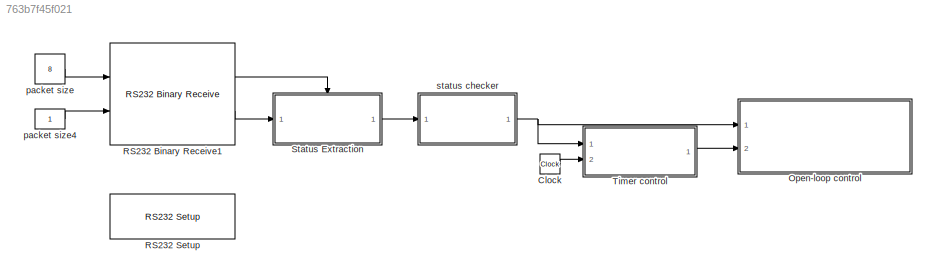
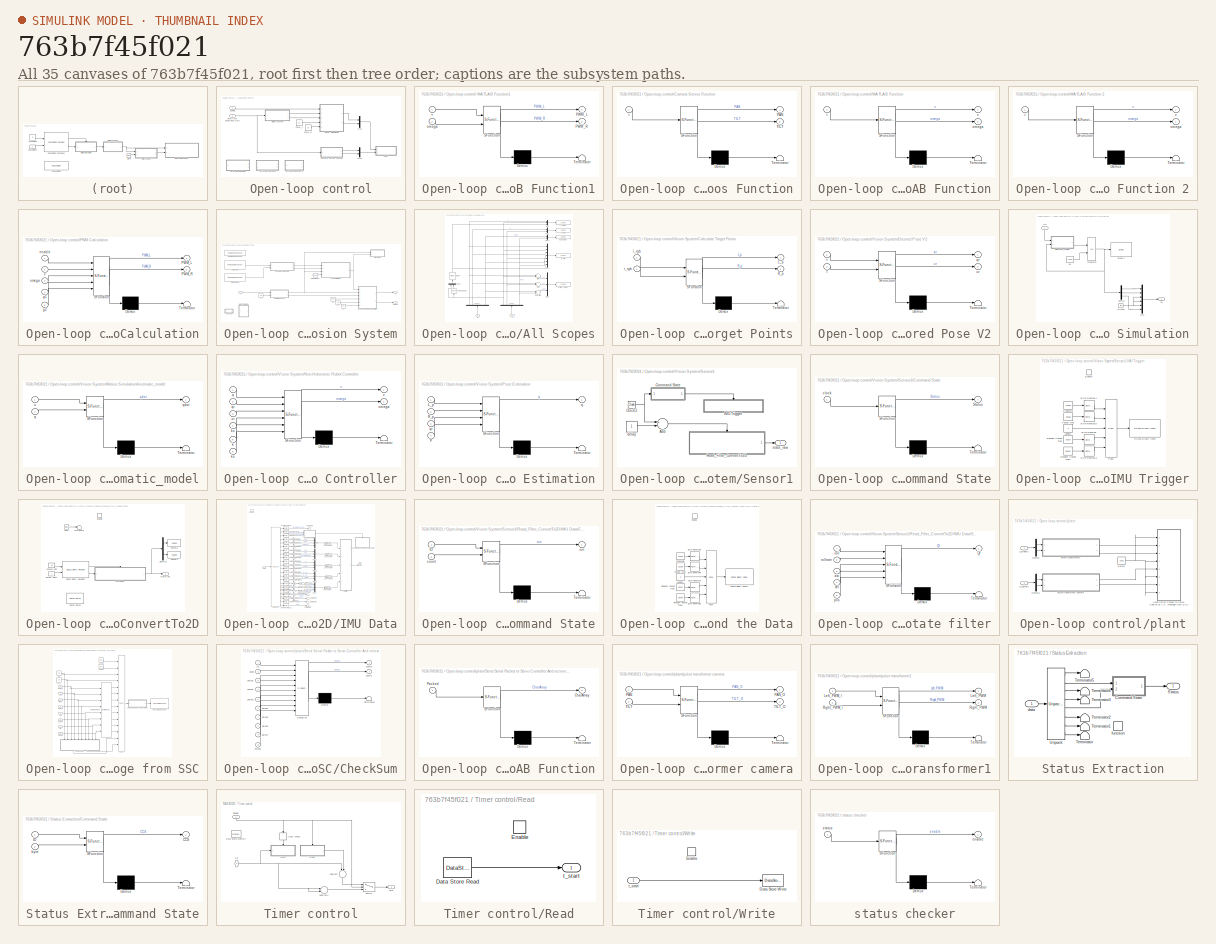
[diagram: thumbnail index - all 35 canvases of the model, root first then tree order]
MODEL slx_763b7f45f021
KIND model
CONFIG AbsTol = auto
CONFIG FixedStep = 1/30
CONFIG MaxStep = auto
CONFIG MinStep = auto
CONFIG RelTol = 1e-3
CONFIG SampleTimeConstraint = Unconstrained
CONFIG Solver = ode3
CONFIG SolverMode = Auto
CONFIG SolverName = ode3
CONFIG StartTime = 0.0
CONFIG StopTime = inf
BLOCK [Clock] Clock
BLOCK [SubSystem] Open-loop control
  Ports = [2]
  RequestExecContextInheritance = off
BLOCK [SubSystem] Open-loop control/ MATLAB Function1
  Commented = on
  ErrorFcn = Stateflow.Translate.translate
  PermitHierarchicalResolution = ExplicitOnly
  Ports = [2, 2]
  RequestExecContextInheritance = off
  SFBlockType = MATLAB Function
  TreatAsAtomicUnit = on
BLOCK [Demux] Open-loop control/ MATLAB Function1/ Demux 
  Outputs = 1
  Ports = [1, 1]
BLOCK [S-Function] Open-loop control/ MATLAB Function1/ SFunction 
  EnableBusSupport = on
  FunctionName = sf_sfun
  PortCounts = [2 3]
  Ports = [2, 3]
  Tag = Stateflow S-Function RobotControl1_640_480 4
BLOCK [Terminator] Open-loop control/ MATLAB Function1/ Terminator 
BLOCK [Outport] Open-loop control/ MATLAB Function1/PWM_L
  IconDisplay = Port number
BLOCK [Outport] Open-loop control/ MATLAB Function1/PWM_R
  IconDisplay = Port number
  Port = 2
BLOCK [Inport] Open-loop control/ MATLAB Function1/omega
  IconDisplay = Port number
  Port = 2
BLOCK [Inport] Open-loop control/ MATLAB Function1/v
  IconDisplay = Port number
BLOCK [SubSystem] Open-loop control/Camera Servos Function
  ErrorFcn = Stateflow.Translate.translate
  PermitHierarchicalResolution = ExplicitOnly
  Ports = [1, 2]
  RequestExecContextInheritance = off
  SFBlockType = MATLAB Function
  TreatAsAtomicUnit = on
BLOCK [Demux] Open-loop control/Camera Servos Function/ Demux 
  Outputs = 1
  Ports = [1, 1]
BLOCK [S-Function] Open-loop control/Camera Servos Function/ SFunction 
  EnableBusSupport = on
  FunctionName = sf_sfun
  PortCounts = [1 3]
  Ports = [1, 3]
  Tag = Stateflow S-Function RobotControl1_640_480 11
BLOCK [Terminator] Open-loop control/Camera Servos Function/ Terminator 
BLOCK [Outport] Open-loop control/Camera Servos Function/PAN
  IconDisplay = Port number
BLOCK [Outport] Open-loop control/Camera Servos Function/TILT
  IconDisplay = Port number
  Port = 2
BLOCK [Inport] Open-loop control/Camera Servos Function/t
  IconDisplay = Port number
BLOCK [Inport] Open-loop control/Enable 
  IconDisplay = Port number
BLOCK [SubSystem] Open-loop control/MATLAB Function
  Commented = on
  ErrorFcn = Stateflow.Translate.translate
  PermitHierarchicalResolution = ExplicitOnly
  Ports = [1, 2]
  RequestExecContextInheritance = off
  SFBlockType = MATLAB Function
  TreatAsAtomicUnit = on
BLOCK [SubSystem] Open-loop control/MATLAB Function 2
  Commented = on
  ErrorFcn = Stateflow.Translate.translate
  PermitHierarchicalResolution = ExplicitOnly
  Ports = [1, 2]
  RequestExecContextInheritance = off
  SFBlockType = MATLAB Function
  TreatAsAtomicUnit = on
BLOCK [Demux] Open-loop control/MATLAB Function 2/ Demux 
  Outputs = 1
  Ports = [1, 1]
BLOCK [S-Function] Open-loop control/MATLAB Function 2/ SFunction 
  EnableBusSupport = on
  FunctionName = sf_sfun
  PortCounts = [1 3]
  Ports = [1, 3]
  Tag = Stateflow S-Function RobotControl1_640_480 1
BLOCK [Terminator] Open-loop control/MATLAB Function 2/ Terminator 
BLOCK [Outport] Open-loop control/MATLAB Function 2/omega
  IconDisplay = Port number
  Port = 2
BLOCK [Inport] Open-loop control/MATLAB Function 2/t
  IconDisplay = Port number
BLOCK [Outport] Open-loop control/MATLAB Function 2/v
  IconDisplay = Port number
BLOCK [Demux] Open-loop control/MATLAB Function/ Demux 
  Outputs = 1
  Ports = [1, 1]
BLOCK [S-Function] Open-loop control/MATLAB Function/ SFunction 
  EnableBusSupport = on
  FunctionName = sf_sfun
  PortCounts = [1 3]
  Ports = [1, 3]
  Tag = Stateflow S-Function RobotControl1_640_480 13
BLOCK [Terminator] Open-loop control/MATLAB Function/ Terminator 
BLOCK [Outport] Open-loop control/MATLAB Function/omega
  IconDisplay = Port number
  Port = 2
BLOCK [Inport] Open-loop control/MATLAB Function/t
  IconDisplay = Port number
BLOCK [Outport] Open-loop control/MATLAB Function/v
  IconDisplay = Port number
BLOCK [Mux] Open-loop control/Mux
  DisplayOption = bar
  Inputs = 2
  Ports = [2, 1]
BLOCK [Mux] Open-loop control/Mux1
  DisplayOption = bar
  Inputs = 2
  Ports = [2, 1]
BLOCK [SubSystem] Open-loop control/PWM Calculation
  ErrorFcn = Stateflow.Translate.translate
  PermitHierarchicalResolution = ExplicitOnly
  Ports = [5, 2]
  RequestExecContextInheritance = off
  SFBlockType = MATLAB Function
  TreatAsAtomicUnit = on
BLOCK [Demux] Open-loop control/PWM Calculation/ Demux 
  Outputs = 1
  Ports = [1, 1]
BLOCK [S-Function] Open-loop control/PWM Calculation/ SFunction 
  EnableBusSupport = on
  FunctionName = sf_sfun
  PortCounts = [5 3]
  Ports = [5, 3]
  Tag = Stateflow S-Function RobotControl1_640_480 10
BLOCK [Terminator] Open-loop control/PWM Calculation/ Terminator 
BLOCK [Outport] Open-loop control/PWM Calculation/PWM_L
  IconDisplay = Port number
BLOCK [Outport] Open-loop control/PWM Calculation/PWM_R
  IconDisplay = Port number
  Port = 2
BLOCK [Inport] Open-loop control/PWM Calculation/enable
  IconDisplay = Port number
BLOCK [Inport] Open-loop control/PWM Calculation/g1
  IconDisplay = Port number
  Port = 4
BLOCK [Inport] Open-loop control/PWM Calculation/g2
  IconDisplay = Port number
  Port = 5
BLOCK [Inport] Open-loop control/PWM Calculation/omega
  IconDisplay = Port number
  Port = 3
BLOCK [Inport] Open-loop control/PWM Calculation/v
  IconDisplay = Port number
  Port = 2
BLOCK [Constant] Open-loop control/PWM_L
  Value = 20
BLOCK [Constant] Open-loop control/PWM_R
  Value = 15
BLOCK [Inport] Open-loop control/Time from closed-loop start
  IconDisplay = Port number
  Port = 2
BLOCK [SubSystem] Open-loop control/Vision System
  Ports = [1, 2]
  RequestExecContextInheritance = off
BLOCK [SubSystem] Open-loop control/Vision System/All Scopes
  Ports = [2]
  RequestExecContextInheritance = off
BLOCK [Demux] Open-loop control/Vision System/All Scopes/Demux
  DisplayOption = bar
  Outputs = 6
  Ports = [1, 6]
BLOCK [Demux] Open-loop control/Vision System/All Scopes/Demux1
  DisplayOption = bar
  Outputs = 6
  Ports = [1, 6]
BLOCK [Reference] Open-loop control/Vision System/All Scopes/Mean  REF=dspstat3/Mean
  InputProcessing = Columns as channels (frame based)
  LockScale = off
  Ports = [1, 1]
  SourceBlock = dspstat3/Mean
  SourceType = Mean
  UserDataPersistent = on
  accumDataTypeStr = Inherit: Same as input
  accumFracLength = 30
  accumLastDataTypeStr = Inherit: Same as input
  accumMode = Same as input
  accumWordLength = 32
  additionalParams = off
  allowOverrides = on
  dimension = 1
  directionMode = Each column
  outputDataTypeStr = Inherit: Same as accumulator
  outputFracLength = 30
  outputLastDataTypeStr = Inherit: Same as accumulator
  outputMax = []
  outputMin = []
  outputMode = Same as accumulator
  outputWordLength = 32
  overflowMode = off
  reset_popup = None
  roiEnable = off
  roiFlag = off
  roiOutput = Individual statistics for each ROI
  roiPortion = Entire ROI
  roiType = Rectangles
  roundingMode = Floor
  run = off
  treatSBRowAsCol = off
BLOCK [Mux] Open-loop control/Vision System/All Scopes/Mux
  DisplayOption = bar
  Inputs = 3
  Ports = [3, 1]
BLOCK [Mux] Open-loop control/Vision System/All Scopes/Mux1
  DisplayOption = bar
  Inputs = 2
  Ports = [2, 1]
BLOCK [Mux] Open-loop control/Vision System/All Scopes/Mux2
  DisplayOption = bar
  Inputs = 2
  Ports = [2, 1]
BLOCK [Mux] Open-loop control/Vision System/All Scopes/Mux3
  DisplayOption = bar
  Inputs = 7
  Ports = [7, 1]
BLOCK [Mux] Open-loop control/Vision System/All Scopes/Mux4
  DisplayOption = bar
  Inputs = 3
  Ports = [3, 1]
BLOCK [Mux] Open-loop control/Vision System/All Scopes/Mux5
  DisplayOption = bar
  Inputs = 2
  Ports = [2, 1]
BLOCK [Reference] Open-loop control/Vision System/All Scopes/Tapped Delay  REF=simulink/Discrete/Tapped Delay
  DelayOrder = Oldest
  NumDelays = 2
  Ports = [1, 1]
  SourceBlock = simulink/Discrete/Tapped Delay
  SourceType = Tapped Delay Line
  includeCurrent = off
  samptime = -1
  vinit = [0 0]
BLOCK [Reference] Open-loop control/Vision System/All Scopes/psir_Target   REF=slrtlib/Displays and
Logging/Scope 
  Ports = [1]
  SourceBlock = slrtlib/Displays and\nLogging/Scope
  SourceType = xpcscopeblock
  autorestart = off
  autostart = on
  dynamicfilemode = off
  filename = data.dat
  formatstr = '%15.6f'
  grid = on
  interleave = 1
  maxwritefilesize = 512*1024^2
  mode = Lazy
  noprepostsamples = 0
  nosamples = 1000
  scopeno = 6
  scopetype = Target
  triggerlevel = 0.0
  triggermode = FreeRun
  triggersample = 0
  triggerscope = 1
  triggersignal = 1
  triggerslope = Either
  trigsignalfromport = off
  viewmode = Graphical rolling
  writesize = 512
  ylimits = [-3, 3]
BLOCK [Inport] Open-loop control/Vision System/All Scopes/q
  IconDisplay = Port number
  Port = 2
BLOCK [Reference] Open-loop control/Vision System/All Scopes/qTilde_Target  REF=slrtlib/Displays and
Logging/Scope 
  Ports = [1]
  SourceBlock = slrtlib/Displays and\nLogging/Scope
  SourceType = xpcscopeblock
  autorestart = off
  autostart = on
  dynamicfilemode = off
  filename = data.dat
  formatstr = '%15.6f'
  grid = on
  interleave = 1
  maxwritefilesize = 512*1024^2
  mode = Lazy
  noprepostsamples = 0
  nosamples = 3
  scopeno = 3
  scopetype = Target
  triggerlevel = 0.0
  triggermode = FreeRun
  triggersample = 0
  triggerscope = 1
  triggersignal = 1
  triggerslope = Either
  trigsignalfromport = off
  viewmode = Numerical
  writesize = 512
  ylimits = [0,0]
BLOCK [Reference] Open-loop control/Vision System/All Scopes/q_File  REF=slrtlib/Displays and
Logging/Scope 
  Ports = [1]
  SourceBlock = slrtlib/Displays and\nLogging/Scope
  SourceType = xpcscopeblock
  autorestart = off
  autostart = on
  dynamicfilemode = off
  filename = q.dat
  formatstr = '%15.6f'
  grid = on
  interleave = 1
  maxwritefilesize = 512*1024^2
  mode = Lazy
  noprepostsamples = 0
  nosamples = 6000
  scopeno = 2
  scopetype = File
  triggerlevel = 0.0
  triggermode = FreeRun
  triggersample = 0
  triggerscope = 1
  triggersignal = 1
  triggerslope = Either
  trigsignalfromport = off
  viewmode = Graphical redraw
  writesize = 512
  ylimits = [0,0]
BLOCK [Inport] Open-loop control/Vision System/All Scopes/qr
  IconDisplay = Port number
BLOCK [Sum] Open-loop control/Vision System/All Scopes/theta_tilde
  InputSameDT = off
  Inputs = +-
  OutDataTypeStr = Inherit: Inherit via internal rule
  Ports = [2, 1]
  SaturateOnIntegerOverflow = off
BLOCK [Reference] Open-loop control/Vision System/All Scopes/x_Target   REF=slrtlib/Displays and
Logging/Scope 
  Ports = [1]
  SourceBlock = slrtlib/Displays and\nLogging/Scope
  SourceType = xpcscopeblock
  autorestart = off
  autostart = on
  dynamicfilemode = off
  filename = data.dat
  formatstr = '%15.6f'
  grid = on
  interleave = 1
  maxwritefilesize = 512*1024^2
  mode = Lazy
  noprepostsamples = 0
  nosamples = 1000
  scopeno = 1
  scopetype = Target
  triggerlevel = 0.0
  triggermode = FreeRun
  triggersample = 0
  triggerscope = 1
  triggersignal = 1
  triggerslope = Either
  trigsignalfromport = off
  viewmode = Graphical rolling
  writesize = 512
  ylimits = [-4.5, 0.5]
BLOCK [Sum] Open-loop control/Vision System/All Scopes/xtilde
  InputSameDT = off
  Inputs = +-
  OutDataTypeStr = Inherit: Inherit via internal rule
  Ports = [2, 1]
  SaturateOnIntegerOverflow = off
BLOCK [Reference] Open-loop control/Vision System/All Scopes/y_Target  REF=slrtlib/Displays and
Logging/Scope 
  Ports = [1]
  SourceBlock = slrtlib/Displays and\nLogging/Scope
  SourceType = xpcscopeblock
  autorestart = off
  autostart = on
  dynamicfilemode = off
  filename = data.dat
  formatstr = '%15.6f'
  grid = on
  interleave = 1
  maxwritefilesize = 512*1024^2
  mode = Lazy
  noprepostsamples = 0
  nosamples = 1000
  scopeno = 4
  scopetype = Target
  triggerlevel = 0.0
  triggermode = FreeRun
  triggersample = 0
  triggerscope = 1
  triggersignal = 1
  triggerslope = Either
  trigsignalfromport = off
  viewmode = Graphical rolling
  writesize = 512
  ylimits = [-2,2]
BLOCK [Sum] Open-loop control/Vision System/All Scopes/ytilde
  InputSameDT = off
  Inputs = +-
  OutDataTypeStr = Inherit: Inherit via internal rule
  Ports = [2, 1]
  SaturateOnIntegerOverflow = off
BLOCK [SubSystem] Open-loop control/Vision System/Calculate Target Points
  ErrorFcn = Stateflow.Translate.translate
  PermitHierarchicalResolution = ExplicitOnly
  Ports = [2, 2]
  RequestExecContextInheritance = off
  SFBlockType = MATLAB Function
  TreatAsAtomicUnit = on
BLOCK [Demux] Open-loop control/Vision System/Calculate Target Points/ Demux 
  Outputs = 1
  Ports = [1, 1]
BLOCK [S-Function] Open-loop control/Vision System/Calculate Target Points/ SFunction 
  EnableBusSupport = on
  FunctionName = sf_sfun
  PortCounts = [2 3]
  Ports = [2, 3]
  Tag = Stateflow S-Function RobotControl1_640_480 6
BLOCK [Terminator] Open-loop control/Vision System/Calculate Target Points/ Terminator 
BLOCK [Outport] Open-loop control/Vision System/Calculate Target Points/L_p
  IconDisplay = Port number
BLOCK [Outport] Open-loop control/Vision System/Calculate Target Points/R_p
  IconDisplay = Port number
  Port = 2
BLOCK [Inport] Open-loop control/Vision System/Calculate Target Points/l_rgb
  IconDisplay = Port number
BLOCK [Inport] Open-loop control/Vision System/Calculate Target Points/r_rgb
  IconDisplay = Port number
  Port = 2
BLOCK [SubSystem] Open-loop control/Vision System/Desired Pose V2
  ErrorFcn = Stateflow.Translate.translate
  PermitHierarchicalResolution = ExplicitOnly
  Ports = [2, 2]
  RequestExecContextInheritance = off
  SFBlockType = MATLAB Function
  TreatAsAtomicUnit = on
BLOCK [Demux] Open-loop control/Vision System/Desired Pose V2/ Demux 
  Outputs = 1
  Ports = [1, 1]
BLOCK [S-Function] Open-loop control/Vision System/Desired Pose V2/ SFunction 
  EnableBusSupport = on
  FunctionName = sf_sfun
  PortCounts = [2 3]
  Ports = [2, 3]
  Tag = Stateflow S-Function RobotControl1_640_480 8
BLOCK [Terminator] Open-loop control/Vision System/Desired Pose V2/ Terminator 
BLOCK [Inport] Open-loop control/Vision System/Desired Pose V2/T
  IconDisplay = Port number
  Port = 2
BLOCK [Outport] Open-loop control/Vision System/Desired Pose V2/qr
  IconDisplay = Port number
BLOCK [Inport] Open-loop control/Vision System/Desired Pose V2/t
  IconDisplay = Port number
BLOCK [Outport] Open-loop control/Vision System/Desired Pose V2/ur
  IconDisplay = Port number
  Port = 2
BLOCK [Reference] Open-loop control/Vision System/Left Camera  REF=xpcvideousblib/From USB Video Device
  Ports = [0, 1]
  SourceBlock = xpcvideousblib/From USB Video Device
  SourceType = xpcvideousb
  cfmt = RGB24 (8:8:8)
  ffmt = Uncompressed
  fint = 1/30
  iheight = 480
  isig = One multidimensional signal
  iwidth = 640
  paddr = 1.0
  sconf = <Select a configuration>
  status = off
  trigger = off
  updateBlock = 1
BLOCK [SubSystem] Open-loop control/Vision System/Motion Simulation
  Commented = on
  Ports = [1, 1]
  RequestExecContextInheritance = off
BLOCK [Demux] Open-loop control/Vision System/Motion Simulation/Demux
  DisplayOption = bar
  Outputs = 3
  Ports = [1, 3]
BLOCK [Ground] Open-loop control/Vision System/Motion Simulation/Ground
BLOCK [Inport] Open-loop control/Vision System/Motion Simulation/In1
  IconDisplay = Port number
BLOCK [Integrator] Open-loop control/Vision System/Motion Simulation/Integrator
  InitialConditionSource = external
  Ports = [2, 1]
BLOCK [Mux] Open-loop control/Vision System/Motion Simulation/Mux
  DisplayOption = bar
  Inputs = 6
  Ports = [6, 1]
BLOCK [Reference] Open-loop control/Vision System/Motion Simulation/Scope 4  REF=slrtlib/Displays and
Logging/Scope 
  Ports = [1]
  SourceBlock = slrtlib/Displays and\nLogging/Scope
  SourceType = xpcscopeblock
  autorestart = off
  autostart = on
  dynamicfilemode = off
  filename = data.dat
  formatstr = '%15.6f'
  grid = on
  interleave = 1
  maxwritefilesize = 512*1024^2
  mode = Lazy
  noprepostsamples = 0
  nosamples = 250
  scopeno = 30
  scopetype = File
  triggerlevel = 0.0
  triggermode = FreeRun
  triggersample = 0
  triggerscope = 1
  triggersignal = 1
  triggerslope = Either
  trigsignalfromport = off
  viewmode = Graphical rolling
  writesize = 512
  ylimits = [0,0]
BLOCK [SubSystem] Open-loop control/Vision System/Motion Simulation/kinematic_model
  ErrorFcn = Stateflow.Translate.translate
  PermitHierarchicalResolution = ExplicitOnly
  Ports = [2, 1]
  RequestExecContextInheritance = off
  SFBlockType = MATLAB Function
  TreatAsAtomicUnit = on
BLOCK [Demux] Open-loop control/Vision System/Motion Simulation/kinematic_model/ Demux 
  Outputs = 1
  Ports = [1, 1]
BLOCK [S-Function] Open-loop control/Vision System/Motion Simulation/kinematic_model/ SFunction 
  EnableBusSupport = on
  FunctionName = sf_sfun
  PortCounts = [2 2]
  Ports = [2, 2]
  Tag = Stateflow S-Function RobotControl1_640_480 9
BLOCK [Terminator] Open-loop control/Vision System/Motion Simulation/kinematic_model/ Terminator 
BLOCK [Inport] Open-loop control/Vision System/Motion Simulation/kinematic_model/q
  IconDisplay = Port number
  Port = 2
BLOCK [Outport] Open-loop control/Vision System/Motion Simulation/kinematic_model/qdot
  IconDisplay = Port number
BLOCK [Inport] Open-loop control/Vision System/Motion Simulation/kinematic_model/u
  IconDisplay = Port number
BLOCK [Constant] Open-loop control/Vision System/Motion Simulation/q0
  Value = [-4 0 0]'
BLOCK [Outport] Open-loop control/Vision System/Motion Simulation/qs
  IconDisplay = Port number
BLOCK [SubSystem] Open-loop control/Vision System/Non-Holonomic Robot Controller
  ErrorFcn = Stateflow.Translate.translate
  PermitHierarchicalResolution = ExplicitOnly
  Ports = [6, 2]
  RequestExecContextInheritance = off
  SFBlockType = MATLAB Function
  TreatAsAtomicUnit = on
BLOCK [Demux] Open-loop control/Vision System/Non-Holonomic Robot Controller/ Demux 
  Outputs = 1
  Ports = [1, 1]
BLOCK [S-Function] Open-loop control/Vision System/Non-Holonomic Robot Controller/ SFunction 
  EnableBusSupport = on
  FunctionName = sf_sfun
  PortCounts = [6 3]
  Ports = [6, 3]
  Tag = Stateflow S-Function RobotControl1_640_480 2
BLOCK [Terminator] Open-loop control/Vision System/Non-Holonomic Robot Controller/ Terminator 
BLOCK [Inport] Open-loop control/Vision System/Non-Holonomic Robot Controller/k
  IconDisplay = Port number
  Port = 5
BLOCK [Inport] Open-loop control/Vision System/Non-Holonomic Robot Controller/ks
  IconDisplay = Port number
  Port = 6
BLOCK [Inport] Open-loop control/Vision System/Non-Holonomic Robot Controller/kx
  IconDisplay = Port number
  Port = 4
BLOCK [Outport] Open-loop control/Vision System/Non-Holonomic Robot Controller/omega
  IconDisplay = Port number
  Port = 2
BLOCK [Inport] Open-loop control/Vision System/Non-Holonomic Robot Controller/q
  IconDisplay = Port number
BLOCK [Inport] Open-loop control/Vision System/Non-Holonomic Robot Controller/qr
  IconDisplay = Port number
  Port = 2
BLOCK [Inport] Open-loop control/Vision System/Non-Holonomic Robot Controller/ur
  IconDisplay = Port number
  Port = 3
BLOCK [Outport] Open-loop control/Vision System/Non-Holonomic Robot Controller/v
  IconDisplay = Port number
BLOCK [Constant] Open-loop control/Vision System/Object Model
  Value = [0 0 22.5 9; 12.75 -12.75 0 0; 2 2 2 22.5; 1 1 1 1]
BLOCK [SubSystem] Open-loop control/Vision System/Pose Estimation
  ErrorFcn = Stateflow.Translate.translate
  PermitHierarchicalResolution = ExplicitOnly
  Ports = [4, 1]
  RequestExecContextInheritance = off
  SFBlockType = MATLAB Function
  TreatAsAtomicUnit = on
BLOCK [Demux] Open-loop control/Vision System/Pose Estimation/ Demux 
  Outputs = 1
  Ports = [1, 1]
BLOCK [S-Function] Open-loop control/Vision System/Pose Estimation/ SFunction 
  EnableBusSupport = on
  FunctionName = sf_sfun
  PortCounts = [4 2]
  Ports = [4, 2]
  Tag = Stateflow S-Function RobotControl1_640_480 7
BLOCK [Terminator] Open-loop control/Vision System/Pose Estimation/ Terminator 
BLOCK [Inport] Open-loop control/Vision System/Pose Estimation/L_p
  IconDisplay = Port number
BLOCK [Inport] Open-loop control/Vision System/Pose Estimation/P
  IconDisplay = Port number
  Port = 4
BLOCK [Inport] Open-loop control/Vision System/Pose Estimation/R_p
  IconDisplay = Port number
  Port = 2
BLOCK [Outport] Open-loop control/Vision System/Pose Estimation/q
  IconDisplay = Port number
BLOCK [Inport] Open-loop control/Vision System/Pose Estimation/qr
  IconDisplay = Port number
  Port = 3
BLOCK [Reference] Open-loop control/Vision System/Right Camera  REF=xpcvideousblib/From USB Video Device
  Ports = [0, 1]
  SourceBlock = xpcvideousblib/From USB Video Device
  SourceType = xpcvideousb
  cfmt = RGB24 (8:8:8)
  ffmt = Uncompressed
  fint = 1/30
  iheight = 480
  isig = One multidimensional signal
  iwidth = 640
  paddr = 1.3
  sconf = <Select a configuration>
  status = off
  trigger = off
  updateBlock = 1
BLOCK [SubSystem] Open-loop control/Vision System/Sensor1
  Commented = on
  Ports = [0, 1]
  RequestExecContextInheritance = off
BLOCK [Sum] Open-loop control/Vision System/Sensor1/Add
  InputSameDT = off
  Inputs = +-
  OutDataTypeStr = Inherit: Inherit via internal rule
  Ports = [2, 1]
  SaturateOnIntegerOverflow = off
BLOCK [Clock] Open-loop control/Vision System/Sensor1/Clock2
BLOCK [SubSystem] Open-loop control/Vision System/Sensor1/Command State
  ErrorFcn = Stateflow.Translate.translate
  PermitHierarchicalResolution = ExplicitOnly
  Ports = [1, 1]
  RequestExecContextInheritance = off
  SFBlockType = MATLAB Function
  TreatAsAtomicUnit = on
BLOCK [Demux] Open-loop control/Vision System/Sensor1/Command State/ Demux 
  Outputs = 1
  Ports = [1, 1]
BLOCK [S-Function] Open-loop control/Vision System/Sensor1/Command State/ SFunction 
  EnableBusSupport = on
  FunctionName = sf_sfun
  PortCounts = [1 2]
  Ports = [1, 2]
  Tag = Stateflow S-Function RobotControl1_640_480 5
BLOCK [Terminator] Open-loop control/Vision System/Sensor1/Command State/ Terminator 
BLOCK [Outport] Open-loop control/Vision System/Sensor1/Command State/Status
  IconDisplay = Port number
BLOCK [Inport] Open-loop control/Vision System/Sensor1/Command State/clock
  IconDisplay = Port number
BLOCK [SubSystem] Open-loop control/Vision System/Sensor1/IMU Trigger
  Ports = [0, 0, 1]
  RequestExecContextInheritance = off
BLOCK [Reference] Open-loop control/Vision System/Sensor1/IMU Trigger/Byte Reversal  REF=xpcutilitieslib/Byte Reversal 
  Ports = [1, 1]
  SourceBlock = xpcutilitieslib/Byte Reversal
  SourceType = xpcreverseendian
  numInp = 1
BLOCK [Reference] Open-loop control/Vision System/Sensor1/IMU Trigger/Byte Reversal1  REF=xpcutilitieslib/Byte Reversal 
  Ports = [1, 1]
  SourceBlock = xpcutilitieslib/Byte Reversal
  SourceType = xpcreverseendian
  numInp = 1
BLOCK [Reference] Open-loop control/Vision System/Sensor1/IMU Trigger/Byte Reversal2  REF=xpcutilitieslib/Byte Reversal 
  Ports = [1, 1]
  SourceBlock = xpcutilitieslib/Byte Reversal
  SourceType = xpcreverseendian
  numInp = 1
BLOCK [Reference] Open-loop control/Vision System/Sensor1/IMU Trigger/Byte Reversal3  REF=xpcutilitieslib/Byte Reversal 
  Ports = [1, 1]
  SourceBlock = xpcutilitieslib/Byte Reversal
  SourceType = xpcreverseendian
  numInp = 1
BLOCK [EnablePort] Open-loop control/Vision System/Sensor1/IMU Trigger/Enable
  Ports = []
  PropagateVarSize = During execution
BLOCK [Constant] Open-loop control/Vision System/Sensor1/IMU Trigger/Length
  OutDataTypeStr = uint8
  Value = 2
BLOCK [Reference] Open-loop control/Vision System/Sensor1/IMU Trigger/Pack  REF=xpcobsoletelib/Utilities/Pack 
  Ports = [5, 1]
  SourceBlock = xpcobsoletelib/Utilities/Pack
  SourceType = xpcany2byte
  byteAlign = 1
  datatypes = {'uint16','uint16','uint8','uint16','uint16'}
BLOCK [Constant] Open-loop control/Vision System/Sensor1/IMU Trigger/Packet Type
  OutDataTypeStr = uint16
  Value = 18256
BLOCK [Constant] Open-loop control/Vision System/Sensor1/IMU Trigger/Preamble
  OutDataTypeStr = uint16
  Value = 21845
BLOCK [Reference] Open-loop control/Vision System/Sensor1/IMU Trigger/RS232 Binary Send  REF=AAxpcseriallibold/Obsolete/Binary
Mode/RS232
Binary Send
  Ports = [1]
  SourceBlock = AAxpcseriallibold/Obsolete/Binary\nMode/RS232\nBinary Send
  SourceType = rs232bsend
  port = COM2
  samptime = -1
  width = 9
BLOCK [Constant] Open-loop control/Vision System/Sensor1/IMU Trigger/Request Packet Type
  OutDataTypeStr = uint16
  Value = 20017
BLOCK [Constant] Open-loop control/Vision System/Sensor1/IMU Trigger/Request Packet Type1
  OutDataTypeStr = uint16
  Value = 38040
BLOCK [SubSystem] Open-loop control/Vision System/Sensor1/Read_Filter_ConvertTo2D
  Ports = [0, 1, 1]
  RequestExecContextInheritance = off
BLOCK [Clock] Open-loop control/Vision System/Sensor1/Read_Filter_ConvertTo2D/Clock
BLOCK [Demux] Open-loop control/Vision System/Sensor1/Read_Filter_ConvertTo2D/Demux1
  DisplayOption = bar
  Outputs = 2
  Ports = [1, 2]
BLOCK [EnablePort] Open-loop control/Vision System/Sensor1/Read_Filter_ConvertTo2D/Enable
  Ports = []
  PropagateVarSize = During execution
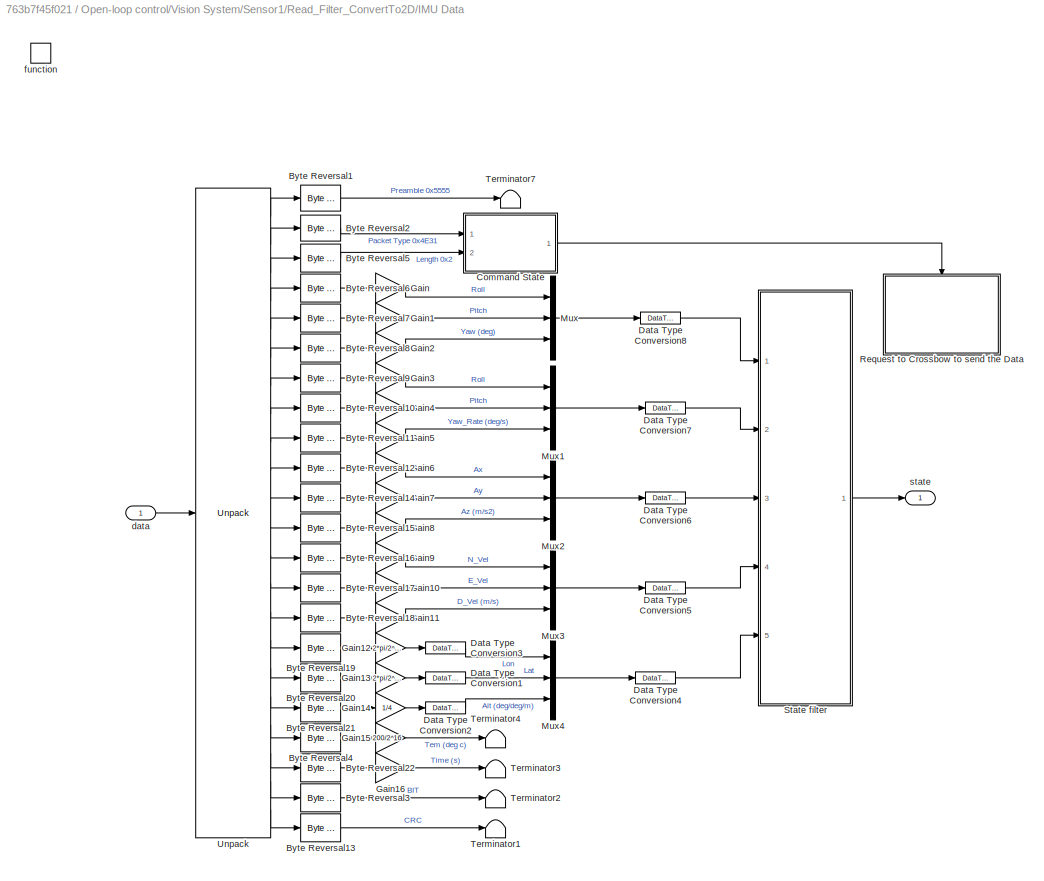
BLOCK [SubSystem] Open-loop control/Vision System/Sensor1/Read_Filter_ConvertTo2D/IMU Data
  Ports = [1, 1, 0, 1]
  RequestExecContextInheritance = off
  TreatAsAtomicUnit = on
BLOCK [Reference] Open-loop control/Vision System/Sensor1/Read_Filter_ConvertTo2D/IMU Data/Byte Reversal1  REF=xpcutilitieslib/Byte Reversal 
  Ports = [1, 1]
  SourceBlock = xpcutilitieslib/Byte Reversal
  SourceType = xpcreverseendian
  numInp = 1
BLOCK [Reference] Open-loop control/Vision System/Sensor1/Read_Filter_ConvertTo2D/IMU Data/Byte Reversal10  REF=xpcutilitieslib/Byte Reversal 
  Ports = [1, 1]
  SourceBlock = xpcutilitieslib/Byte Reversal
  SourceType = xpcreverseendian
  numInp = 1
BLOCK [Reference] Open-loop control/Vision System/Sensor1/Read_Filter_ConvertTo2D/IMU Data/Byte Reversal11  REF=xpcutilitieslib/Byte Reversal 
  Ports = [1, 1]
  SourceBlock = xpcutilitieslib/Byte Reversal
  SourceType = xpcreverseendian
  numInp = 1
BLOCK [Reference] Open-loop control/Vision System/Sensor1/Read_Filter_ConvertTo2D/IMU Data/Byte Reversal12  REF=xpcutilitieslib/Byte Reversal 
  Ports = [1, 1]
  SourceBlock = xpcutilitieslib/Byte Reversal
  SourceType = xpcreverseendian
  numInp = 1
BLOCK [Reference] Open-loop control/Vision System/Sensor1/Read_Filter_ConvertTo2D/IMU Data/Byte Reversal13  REF=xpcutilitieslib/Byte Reversal 
  Ports = [1, 1]
  SourceBlock = xpcutilitieslib/Byte Reversal
  SourceType = xpcreverseendian
  numInp = 1
BLOCK [Reference] Open-loop control/Vision System/Sensor1/Read_Filter_ConvertTo2D/IMU Data/Byte Reversal14  REF=xpcutilitieslib/Byte Reversal 
  Ports = [1, 1]
  SourceBlock = xpcutilitieslib/Byte Reversal
  SourceType = xpcreverseendian
  numInp = 1
BLOCK [Reference] Open-loop control/Vision System/Sensor1/Read_Filter_ConvertTo2D/IMU Data/Byte Reversal15  REF=xpcutilitieslib/Byte Reversal 
  Ports = [1, 1]
  SourceBlock = xpcutilitieslib/Byte Reversal
  SourceType = xpcreverseendian
  numInp = 1
BLOCK [Reference] Open-loop control/Vision System/Sensor1/Read_Filter_ConvertTo2D/IMU Data/Byte Reversal16  REF=xpcutilitieslib/Byte Reversal 
  Ports = [1, 1]
  SourceBlock = xpcutilitieslib/Byte Reversal
  SourceType = xpcreverseendian
  numInp = 1
BLOCK [Reference] Open-loop control/Vision System/Sensor1/Read_Filter_ConvertTo2D/IMU Data/Byte Reversal17  REF=xpcutilitieslib/Byte Reversal 
  Ports = [1, 1]
  SourceBlock = xpcutilitieslib/Byte Reversal
  SourceType = xpcreverseendian
  numInp = 1
BLOCK [Reference] Open-loop control/Vision System/Sensor1/Read_Filter_ConvertTo2D/IMU Data/Byte Reversal18  REF=xpcutilitieslib/Byte Reversal 
  Ports = [1, 1]
  SourceBlock = xpcutilitieslib/Byte Reversal
  SourceType = xpcreverseendian
  numInp = 1
BLOCK [Reference] Open-loop control/Vision System/Sensor1/Read_Filter_ConvertTo2D/IMU Data/Byte Reversal19  REF=xpcutilitieslib/Byte Reversal 
  Ports = [1, 1]
  SourceBlock = xpcutilitieslib/Byte Reversal
  SourceType = xpcreverseendian
  numInp = 1
BLOCK [Reference] Open-loop control/Vision System/Sensor1/Read_Filter_ConvertTo2D/IMU Data/Byte Reversal2  REF=xpcutilitieslib/Byte Reversal 
  Ports = [1, 1]
  SourceBlock = xpcutilitieslib/Byte Reversal
  SourceType = xpcreverseendian
  numInp = 1
BLOCK [Reference] Open-loop control/Vision System/Sensor1/Read_Filter_ConvertTo2D/IMU Data/Byte Reversal20  REF=xpcutilitieslib/Byte Reversal 
  Ports = [1, 1]
  SourceBlock = xpcutilitieslib/Byte Reversal
  SourceType = xpcreverseendian
  numInp = 1
BLOCK [Reference] Open-loop control/Vision System/Sensor1/Read_Filter_ConvertTo2D/IMU Data/Byte Reversal21  REF=xpcutilitieslib/Byte Reversal 
  Ports = [1, 1]
  SourceBlock = xpcutilitieslib/Byte Reversal
  SourceType = xpcreverseendian
  numInp = 1
BLOCK [Reference] Open-loop control/Vision System/Sensor1/Read_Filter_ConvertTo2D/IMU Data/Byte Reversal22  REF=xpcutilitieslib/Byte Reversal 
  Ports = [1, 1]
  SourceBlock = xpcutilitieslib/Byte Reversal
  SourceType = xpcreverseendian
  numInp = 1
BLOCK [Reference] Open-loop control/Vision System/Sensor1/Read_Filter_ConvertTo2D/IMU Data/Byte Reversal3  REF=xpcutilitieslib/Byte Reversal 
  Ports = [1, 1]
  SourceBlock = xpcutilitieslib/Byte Reversal
  SourceType = xpcreverseendian
  numInp = 1
BLOCK [Reference] Open-loop control/Vision System/Sensor1/Read_Filter_ConvertTo2D/IMU Data/Byte Reversal4  REF=xpcutilitieslib/Byte Reversal 
  Ports = [1, 1]
  SourceBlock = xpcutilitieslib/Byte Reversal
  SourceType = xpcreverseendian
  numInp = 1
BLOCK [Reference] Open-loop control/Vision System/Sensor1/Read_Filter_ConvertTo2D/IMU Data/Byte Reversal5  REF=xpcutilitieslib/Byte Reversal 
  Ports = [1, 1]
  SourceBlock = xpcutilitieslib/Byte Reversal
  SourceType = xpcreverseendian
  numInp = 1
BLOCK [Reference] Open-loop control/Vision System/Sensor1/Read_Filter_ConvertTo2D/IMU Data/Byte Reversal6  REF=xpcutilitieslib/Byte Reversal 
  Ports = [1, 1]
  SourceBlock = xpcutilitieslib/Byte Reversal
  SourceType = xpcreverseendian
  numInp = 1
BLOCK [Reference] Open-loop control/Vision System/Sensor1/Read_Filter_ConvertTo2D/IMU Data/Byte Reversal7  REF=xpcutilitieslib/Byte Reversal 
  Ports = [1, 1]
  SourceBlock = xpcutilitieslib/Byte Reversal
  SourceType = xpcreverseendian
  numInp = 1
BLOCK [Reference] Open-loop control/Vision System/Sensor1/Read_Filter_ConvertTo2D/IMU Data/Byte Reversal8  REF=xpcutilitieslib/Byte Reversal 
  Ports = [1, 1]
  SourceBlock = xpcutilitieslib/Byte Reversal
  SourceType = xpcreverseendian
  numInp = 1
BLOCK [Reference] Open-loop control/Vision System/Sensor1/Read_Filter_ConvertTo2D/IMU Data/Byte Reversal9  REF=xpcutilitieslib/Byte Reversal 
  Ports = [1, 1]
  SourceBlock = xpcutilitieslib/Byte Reversal
  SourceType = xpcreverseendian
  numInp = 1
BLOCK [SubSystem] Open-loop control/Vision System/Sensor1/Read_Filter_ConvertTo2D/IMU Data/Command State
  ErrorFcn = Stateflow.Translate.translate
  PermitHierarchicalResolution = ExplicitOnly
  Ports = [2, 1]
  RequestExecContextInheritance = off
  SFBlockType = MATLAB Function
  TreatAsAtomicUnit = on
BLOCK [Demux] Open-loop control/Vision System/Sensor1/Read_Filter_ConvertTo2D/IMU Data/Command State/ Demux 
  Outputs = 1
  Ports = [1, 1]
BLOCK [S-Function] Open-loop control/Vision System/Sensor1/Read_Filter_ConvertTo2D/IMU Data/Command State/ SFunction 
  EnableBusSupport = on
  FunctionName = sf_sfun
  PortCounts = [2 2]
  Ports = [2, 2]
  Tag = Stateflow S-Function RobotControl1_640_480 14
BLOCK [Terminator] Open-loop control/Vision System/Sensor1/Read_Filter_ConvertTo2D/IMU Data/Command State/ Terminator 
BLOCK [Inport] Open-loop control/Vision System/Sensor1/Read_Filter_ConvertTo2D/IMU Data/Command State/ID
  IconDisplay = Port number
BLOCK [Inport] Open-loop control/Vision System/Sensor1/Read_Filter_ConvertTo2D/IMU Data/Command State/count
  IconDisplay = Port number
  Port = 2
BLOCK [Outport] Open-loop control/Vision System/Sensor1/Read_Filter_ConvertTo2D/IMU Data/Command State/run
  IconDisplay = Port number
BLOCK [DataTypeConversion] Open-loop control/Vision System/Sensor1/Read_Filter_ConvertTo2D/IMU Data/Data Type Conversion1
  OutDataTypeStr = double
  RndMeth = Floor
  SaturateOnIntegerOverflow = off
BLOCK [DataTypeConversion] Open-loop control/Vision System/Sensor1/Read_Filter_ConvertTo2D/IMU Data/Data Type Conversion2
  OutDataTypeStr = double
  RndMeth = Floor
  SaturateOnIntegerOverflow = off
BLOCK [DataTypeConversion] Open-loop control/Vision System/Sensor1/Read_Filter_ConvertTo2D/IMU Data/Data Type Conversion3
  OutDataTypeStr = double
  RndMeth = Floor
  SaturateOnIntegerOverflow = off
BLOCK [DataTypeConversion] Open-loop control/Vision System/Sensor1/Read_Filter_ConvertTo2D/IMU Data/Data Type Conversion4
  OutDataTypeStr = double
  RndMeth = Floor
  SaturateOnIntegerOverflow = off
BLOCK [DataTypeConversion] Open-loop control/Vision System/Sensor1/Read_Filter_ConvertTo2D/IMU Data/Data Type Conversion5
  OutDataTypeStr = double
  RndMeth = Floor
  SaturateOnIntegerOverflow = off
BLOCK [DataTypeConversion] Open-loop control/Vision System/Sensor1/Read_Filter_ConvertTo2D/IMU Data/Data Type Conversion6
  OutDataTypeStr = double
  RndMeth = Floor
  SaturateOnIntegerOverflow = off
BLOCK [DataTypeConversion] Open-loop control/Vision System/Sensor1/Read_Filter_ConvertTo2D/IMU Data/Data Type Conversion7
  OutDataTypeStr = double
  RndMeth = Floor
  SaturateOnIntegerOverflow = off
BLOCK [DataTypeConversion] Open-loop control/Vision System/Sensor1/Read_Filter_ConvertTo2D/IMU Data/Data Type Conversion8
  OutDataTypeStr = double
  RndMeth = Floor
  SaturateOnIntegerOverflow = off
BLOCK [Gain] Open-loop control/Vision System/Sensor1/Read_Filter_ConvertTo2D/IMU Data/Gain
  Gain = 2*pi/2^16
  OutDataTypeStr = Inherit: Inherit via internal rule
  ParamDataTypeStr = Inherit: Inherit via internal rule
  SaturateOnIntegerOverflow = off
BLOCK [Gain] Open-loop control/Vision System/Sensor1/Read_Filter_ConvertTo2D/IMU Data/Gain1
  Gain = 2*pi/2^16
  OutDataTypeStr = Inherit: Inherit via internal rule
  ParamDataTypeStr = Inherit: Inherit via internal rule
  SaturateOnIntegerOverflow = off
BLOCK [Gain] Open-loop control/Vision System/Sensor1/Read_Filter_ConvertTo2D/IMU Data/Gain10
  Gain = 512/2^16
  OutDataTypeStr = Inherit: Inherit via internal rule
  ParamDataTypeStr = Inherit: Inherit via internal rule
  SaturateOnIntegerOverflow = off
BLOCK [Gain] Open-loop control/Vision System/Sensor1/Read_Filter_ConvertTo2D/IMU Data/Gain11
  Gain = 512/2^16
  OutDataTypeStr = Inherit: Inherit via internal rule
  ParamDataTypeStr = Inherit: Inherit via internal rule
  SaturateOnIntegerOverflow = off
BLOCK [Gain] Open-loop control/Vision System/Sensor1/Read_Filter_ConvertTo2D/IMU Data/Gain12
  Gain = 2*pi/2^32
  OutDataTypeStr = Inherit: Inherit via internal rule
  ParamDataTypeStr = Inherit: Inherit via internal rule
  SaturateOnIntegerOverflow = off
BLOCK [Gain] Open-loop control/Vision System/Sensor1/Read_Filter_ConvertTo2D/IMU Data/Gain13
  Gain = 2*pi/2^32
  OutDataTypeStr = Inherit: Inherit via internal rule
  ParamDataTypeStr = Inherit: Inherit via internal rule
  SaturateOnIntegerOverflow = off
BLOCK [Gain] Open-loop control/Vision System/Sensor1/Read_Filter_ConvertTo2D/IMU Data/Gain14
  Gain = 1/4
  OutDataTypeStr = Inherit: Inherit via internal rule
  ParamDataTypeStr = Inherit: Inherit via internal rule
  SaturateOnIntegerOverflow = off
BLOCK [Gain] Open-loop control/Vision System/Sensor1/Read_Filter_ConvertTo2D/IMU Data/Gain15
  Gain = 200/2^16
  OutDataTypeStr = Inherit: Inherit via internal rule
  ParamDataTypeStr = Inherit: Inherit via internal rule
  SaturateOnIntegerOverflow = off
BLOCK [Gain] Open-loop control/Vision System/Sensor1/Read_Filter_ConvertTo2D/IMU Data/Gain16
  OutDataTypeStr = Inherit: Inherit via internal rule
  ParamDataTypeStr = Inherit: Inherit via internal rule
  SaturateOnIntegerOverflow = off
BLOCK [Gain] Open-loop control/Vision System/Sensor1/Read_Filter_ConvertTo2D/IMU Data/Gain2
  Gain = 2*pi/2^16
  OutDataTypeStr = Inherit: Inherit via internal rule
  ParamDataTypeStr = Inherit: Inherit via internal rule
  SaturateOnIntegerOverflow = off
BLOCK [Gain] Open-loop control/Vision System/Sensor1/Read_Filter_ConvertTo2D/IMU Data/Gain3
  Gain = 7*pi/2^16
  OutDataTypeStr = Inherit: Inherit via internal rule
  ParamDataTypeStr = Inherit: Inherit via internal rule
  SaturateOnIntegerOverflow = off
BLOCK [Gain] Open-loop control/Vision System/Sensor1/Read_Filter_ConvertTo2D/IMU Data/Gain4
  Gain = 7*pi/2^16
  OutDataTypeStr = Inherit: Inherit via internal rule
  ParamDataTypeStr = Inherit: Inherit via internal rule
  SaturateOnIntegerOverflow = off
BLOCK [Gain] Open-loop control/Vision System/Sensor1/Read_Filter_ConvertTo2D/IMU Data/Gain5
  Gain = 7*pi/2^16
  OutDataTypeStr = Inherit: Inherit via internal rule
  ParamDataTypeStr = Inherit: Inherit via internal rule
  SaturateOnIntegerOverflow = off
BLOCK [Gain] Open-loop control/Vision System/Sensor1/Read_Filter_ConvertTo2D/IMU Data/Gain6
  Gain = 20/2^16
  OutDataTypeStr = Inherit: Inherit via internal rule
  ParamDataTypeStr = Inherit: Inherit via internal rule
  SaturateOnIntegerOverflow = off
BLOCK [Gain] Open-loop control/Vision System/Sensor1/Read_Filter_ConvertTo2D/IMU Data/Gain7
  Gain = 20/2^16
  OutDataTypeStr = Inherit: Inherit via internal rule
  ParamDataTypeStr = Inherit: Inherit via internal rule
  SaturateOnIntegerOverflow = off
BLOCK [Gain] Open-loop control/Vision System/Sensor1/Read_Filter_ConvertTo2D/IMU Data/Gain8
  Gain = 20/2^16
  OutDataTypeStr = Inherit: Inherit via internal rule
  ParamDataTypeStr = Inherit: Inherit via internal rule
  SaturateOnIntegerOverflow = off
BLOCK [Gain] Open-loop control/Vision System/Sensor1/Read_Filter_ConvertTo2D/IMU Data/Gain9
  Gain = 512/2^16
  OutDataTypeStr = Inherit: Inherit via internal rule
  ParamDataTypeStr = Inherit: Inherit via internal rule
  SaturateOnIntegerOverflow = off
BLOCK [Mux] Open-loop control/Vision System/Sensor1/Read_Filter_ConvertTo2D/IMU Data/Mux
  DisplayOption = bar
  Inputs = 3
  Ports = [3, 1]
BLOCK [Mux] Open-loop control/Vision System/Sensor1/Read_Filter_ConvertTo2D/IMU Data/Mux1
  DisplayOption = bar
  Inputs = 3
  Ports = [3, 1]
BLOCK [Mux] Open-loop control/Vision System/Sensor1/Read_Filter_ConvertTo2D/IMU Data/Mux2
  DisplayOption = bar
  Inputs = 3
  Ports = [3, 1]
BLOCK [Mux] Open-loop control/Vision System/Sensor1/Read_Filter_ConvertTo2D/IMU Data/Mux3
  DisplayOption = bar
  Inputs = 3
  Ports = [3, 1]
BLOCK [Mux] Open-loop control/Vision System/Sensor1/Read_Filter_ConvertTo2D/IMU Data/Mux4
  DisplayOption = bar
  Inputs = 3
  Ports = [3, 1]
BLOCK [SubSystem] Open-loop control/Vision System/Sensor1/Read_Filter_ConvertTo2D/IMU Data/Request to Crossbow to send the Data
  Ports = [0, 0, 1]
  RequestExecContextInheritance = off
BLOCK [Reference] Open-loop control/Vision System/Sensor1/Read_Filter_ConvertTo2D/IMU Data/Request to Crossbow to send the Data/Byte Reversal  REF=xpcutilitieslib/Byte Reversal 
  Ports = [1, 1]
  SourceBlock = xpcutilitieslib/Byte Reversal
  SourceType = xpcreverseendian
  numInp = 1
BLOCK [Reference] Open-loop control/Vision System/Sensor1/Read_Filter_ConvertTo2D/IMU Data/Request to Crossbow to send the Data/Byte Reversal3  REF=xpcutilitieslib/Byte Reversal 
  Ports = [1, 1]
  SourceBlock = xpcutilitieslib/Byte Reversal
  SourceType = xpcreverseendian
  numInp = 1
BLOCK [Reference] Open-loop control/Vision System/Sensor1/Read_Filter_ConvertTo2D/IMU Data/Request to Crossbow to send the Data/Byte Reversal4  REF=xpcutilitieslib/Byte Reversal 
  Ports = [1, 1]
  SourceBlock = xpcutilitieslib/Byte Reversal
  SourceType = xpcreverseendian
  numInp = 1
BLOCK [Reference] Open-loop control/Vision System/Sensor1/Read_Filter_ConvertTo2D/IMU Data/Request to Crossbow to send the Data/Byte Reversal5  REF=xpcutilitieslib/Byte Reversal 
  Ports = [1, 1]
  SourceBlock = xpcutilitieslib/Byte Reversal
  SourceType = xpcreverseendian
  numInp = 1
BLOCK [EnablePort] Open-loop control/Vision System/Sensor1/Read_Filter_ConvertTo2D/IMU Data/Request to Crossbow to send the Data/Enable
  Ports = []
  PropagateVarSize = During execution
BLOCK [Constant] Open-loop control/Vision System/Sensor1/Read_Filter_ConvertTo2D/IMU Data/Request to Crossbow to send the Data/Length
  OutDataTypeStr = uint8
  Value = 2
BLOCK [Reference] Open-loop control/Vision System/Sensor1/Read_Filter_ConvertTo2D/IMU Data/Request to Crossbow to send the Data/Pack  REF=xpcobsoletelib/Utilities/Pack 
  Ports = [5, 1]
  SourceBlock = xpcobsoletelib/Utilities/Pack
  SourceType = xpcany2byte
  byteAlign = 1
  datatypes = {'uint16','uint16','uint8','uint16','uint16'}
BLOCK [Constant] Open-loop control/Vision System/Sensor1/Read_Filter_ConvertTo2D/IMU Data/Request to Crossbow to send the Data/Packet Type
  OutDataTypeStr = uint16
  Value = 18256
BLOCK [Constant] Open-loop control/Vision System/Sensor1/Read_Filter_ConvertTo2D/IMU Data/Request to Crossbow to send the Data/Preamble
  OutDataTypeStr = uint16
  Value = 21845
BLOCK [Reference] Open-loop control/Vision System/Sensor1/Read_Filter_ConvertTo2D/IMU Data/Request to Crossbow to send the Data/RS232 Binary Send1  REF=AAxpcseriallibold/Obsolete/Binary
Mode/RS232
Binary Send
  Ports = [1]
  SourceBlock = AAxpcseriallibold/Obsolete/Binary\nMode/RS232\nBinary Send
  SourceType = rs232bsend
  port = COM2
  samptime = -1
  width = 9
BLOCK [Constant] Open-loop control/Vision System/Sensor1/Read_Filter_ConvertTo2D/IMU Data/Request to Crossbow to send the Data/Request Packet Type
  OutDataTypeStr = uint16
  Value = 20017
BLOCK [Constant] Open-loop control/Vision System/Sensor1/Read_Filter_ConvertTo2D/IMU Data/Request to Crossbow to send the Data/Request Packet Type1
  OutDataTypeStr = uint16
  Value = 38040
BLOCK [SubSystem] Open-loop control/Vision System/Sensor1/Read_Filter_ConvertTo2D/IMU Data/State filter
  ErrorFcn = Stateflow.Translate.translate
  PermitHierarchicalResolution = ExplicitOnly
  Ports = [5, 1]
  RequestExecContextInheritance = off
  SFBlockType = MATLAB Function
  TreatAsAtomicUnit = on
BLOCK [Demux] Open-loop control/Vision System/Sensor1/Read_Filter_ConvertTo2D/IMU Data/State filter/ Demux 
  Outputs = 1
  Ports = [1, 1]
BLOCK [S-Function] Open-loop control/Vision System/Sensor1/Read_Filter_ConvertTo2D/IMU Data/State filter/ SFunction 
  EnableBusSupport = on
  FunctionName = sf_sfun
  PortCounts = [5 2]
  Ports = [5, 2]
  Tag = Stateflow S-Function RobotControl1_640_480 16
BLOCK [Terminator] Open-loop control/Vision System/Sensor1/Read_Filter_ConvertTo2D/IMU Data/State filter/ Terminator 
BLOCK [Outport] Open-loop control/Vision System/Sensor1/Read_Filter_ConvertTo2D/IMU Data/State filter/Qf
  IconDisplay = Port number
BLOCK [Inport] Open-loop control/Vision System/Sensor1/Read_Filter_ConvertTo2D/IMU Data/State filter/acc
  IconDisplay = Port number
  Port = 3
BLOCK [Inport] Open-loop control/Vision System/Sensor1/Read_Filter_ConvertTo2D/IMU Data/State filter/pos
  IconDisplay = Port number
  Port = 5
BLOCK [Inport] Open-loop control/Vision System/Sensor1/Read_Filter_ConvertTo2D/IMU Data/State filter/roll
  IconDisplay = Port number
BLOCK [Inport] Open-loop control/Vision System/Sensor1/Read_Filter_ConvertTo2D/IMU Data/State filter/rollrate
  IconDisplay = Port number
  Port = 2
BLOCK [Inport] Open-loop control/Vision System/Sensor1/Read_Filter_ConvertTo2D/IMU Data/State filter/vel
  IconDisplay = Port number
  Port = 4
BLOCK [Terminator] Open-loop control/Vision System/Sensor1/Read_Filter_ConvertTo2D/IMU Data/Terminator1
BLOCK [Terminator] Open-loop control/Vision System/Sensor1/Read_Filter_ConvertTo2D/IMU Data/Terminator2
BLOCK [Terminator] Open-loop control/Vision System/Sensor1/Read_Filter_ConvertTo2D/IMU Data/Terminator3
BLOCK [Terminator] Open-loop control/Vision System/Sensor1/Read_Filter_ConvertTo2D/IMU Data/Terminator4
BLOCK [Terminator] Open-loop control/Vision System/Sensor1/Read_Filter_ConvertTo2D/IMU Data/Terminator7
BLOCK [Reference] Open-loop control/Vision System/Sensor1/Read_Filter_ConvertTo2D/IMU Data/Unpack  REF=xpcobsoletelib/Utilities/Unpack 
  Ports = [1, 22]
  SourceBlock = xpcobsoletelib/Utilities/Unpack
  SourceType = xpcbyte2any
  byteAlign = 1
  datatypes = {'uint16','uint16','uint8','int16','int16','int16','int16','int16','int16','int16','int16','int16','int16','int16','int16','int32','int32','int16','int16','uint32','uint16','uint16'}
  dimensions = {1,1,1,1,1,1,1,1,1,1,1,1,1,1,1,1,1,1,1,1,1,1}
BLOCK [Inport] Open-loop control/Vision System/Sensor1/Read_Filter_ConvertTo2D/IMU Data/data
  IconDisplay = Port number
BLOCK [TriggerPort] Open-loop control/Vision System/Sensor1/Read_Filter_ConvertTo2D/IMU Data/function
  OutputDataType = int8
  Ports = []
  TriggerType = function-call
BLOCK [Outport] Open-loop control/Vision System/Sensor1/Read_Filter_ConvertTo2D/IMU Data/state
  IconDisplay = Port number
BLOCK [Reference] Open-loop control/Vision System/Sensor1/Read_Filter_ConvertTo2D/RS232 Binary Receive1  REF=AAxpcseriallibold/Obsolete/Binary
Mode/RS232
Binary Receive
  Ports = [2, 2]
  SourceBlock = AAxpcseriallibold/Obsolete/Binary\nMode/RS232\nBinary Receive
  SourceType = rs232brec
  port = COM2
  samptime = -1
  width = 49
BLOCK [Reference] Open-loop control/Vision System/Sensor1/Read_Filter_ConvertTo2D/RS232 Setup   REF=AAxpcseriallibold/Obsolete/RS232 Setup 
  Ports = []
  SourceBlock = AAxpcseriallibold/Obsolete/RS232 Setup
  SourceType = rs232setup
  baud = 57600
  dbits = 8
  initstruct = []
  parity = None
  port = COM2
  prot = None
  rbuf = 1024
  sbits = 1
  sbuf = 1024
  termstruct = []
BLOCK [Terminator] Open-loop control/Vision System/Sensor1/Read_Filter_ConvertTo2D/Terminator
BLOCK [Constant] Open-loop control/Vision System/Sensor1/Read_Filter_ConvertTo2D/packet size
  Value = 49
BLOCK [Constant] Open-loop control/Vision System/Sensor1/Read_Filter_ConvertTo2D/packet size4
BLOCK [Reference] Open-loop control/Vision System/Sensor1/Read_Filter_ConvertTo2D/sensor1  REF=slrtlib/Displays and
Logging/Scope 
  Ports = [1]
  SourceBlock = slrtlib/Displays and\nLogging/Scope
  SourceType = xpcscopeblock
  autorestart = on
  autostart = on
  dynamicfilemode = off
  filename = 1sens15.dat
  formatstr = '%15.6f'
  grid = on
  interleave = 1
  maxwritefilesize = 512*1024^2
  mode = Commit
  noprepostsamples = 0
  nosamples = 3000
  scopeno = 4
  scopetype = File
  triggerlevel = 0.0
  triggermode = FreeRun
  triggersample = 0
  triggerscope = 1
  triggersignal = 1
  triggerslope = Either
  trigsignalfromport = off
  viewmode = Graphical rolling
  writesize = 512
  ylimits = [-10,50]
BLOCK [Reference] Open-loop control/Vision System/Sensor1/Read_Filter_ConvertTo2D/sensor2  REF=slrtlib/Displays and
Logging/Scope 
  Ports = [1]
  SourceBlock = slrtlib/Displays and\nLogging/Scope
  SourceType = xpcscopeblock
  autorestart = on
  autostart = on
  dynamicfilemode = off
  filename = 1sens16.dat
  formatstr = '%15.6f'
  grid = on
  interleave = 1
  maxwritefilesize = 512*1024^2
  mode = Commit
  noprepostsamples = 0
  nosamples = 3000
  scopeno = 6
  scopetype = File
  triggerlevel = 0.0
  triggermode = FreeRun
  triggersample = 0
  triggerscope = 1
  triggersignal = 1
  triggerslope = Either
  trigsignalfromport = off
  viewmode = Graphical rolling
  writesize = 512
  ylimits = [-10,50]
BLOCK [Outport] Open-loop control/Vision System/Sensor1/Read_Filter_ConvertTo2D/state_raw
  IconDisplay = Port number
BLOCK [Constant] Open-loop control/Vision System/Sensor1/delay
BLOCK [Outport] Open-loop control/Vision System/Sensor1/state_raw
  IconDisplay = Port number
BLOCK [Constant] Open-loop control/Vision System/T
  Value = 36
BLOCK [Reference] Open-loop control/Vision System/USB Video Device List  REF=xpcvideousblib/USB Video Device List
  Ports = []
  ShowInLibBrowser = 0
  SourceBlock = xpcvideousblib/USB Video Device List
  SourceType = xpcusbsearch
  UserDataPersistent = on
  usb_search = on
BLOCK [Constant] Open-loop control/Vision System/k
  Value = 1.5
BLOCK [Constant] Open-loop control/Vision System/ks
  Value = 1.5
BLOCK [Constant] Open-loop control/Vision System/kx
  Value = 0.25
BLOCK [Outport] Open-loop control/Vision System/omega
  IconDisplay = Port number
  Port = 2
BLOCK [Inport] Open-loop control/Vision System/t
  IconDisplay = Port number
BLOCK [Outport] Open-loop control/Vision System/v
  IconDisplay = Port number
BLOCK [SubSystem] Open-loop control/plant
  Ports = [2]
  RequestExecContextInheritance = off
BLOCK [Demux] Open-loop control/plant/Demux
  DisplayOption = bar
  Outputs = 2
  Ports = [1, 2]
BLOCK [Demux] Open-loop control/plant/Demux1
  DisplayOption = bar
  Outputs = 2
  Ports = [1, 2]
BLOCK [SubSystem] Open-loop control/plant/Send Serial Packet to Servo Controller And recieve status message from SSC
  Ports = [8]
  RequestExecContextInheritance = off
  TreatAsAtomicUnit = on
BLOCK [Reference] Open-loop control/plant/Send Serial Packet to Servo Controller And recieve status message from SSC/Byte Reversal  REF=xpcutilitieslib/Byte Reversal 
  Ports = [8, 8]
  SourceBlock = xpcutilitieslib/Byte Reversal
  SourceType = xpcreverseendian
  numInp = 8
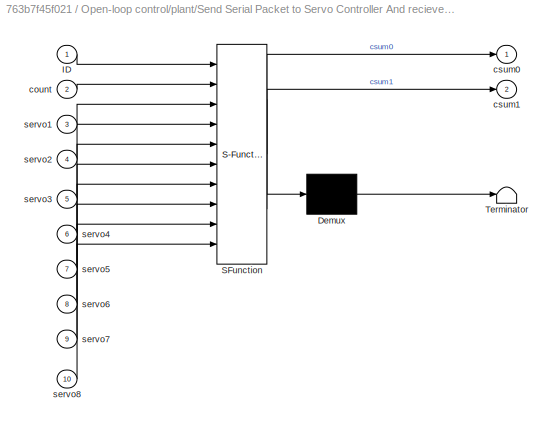
BLOCK [SubSystem] Open-loop control/plant/Send Serial Packet to Servo Controller And recieve status message from SSC/CheckSum
  ErrorFcn = Stateflow.Translate.translate
  PermitHierarchicalResolution = ExplicitOnly
  Ports = [10, 2]
  RequestExecContextInheritance = off
  SFBlockType = MATLAB Function
  TreatAsAtomicUnit = on
BLOCK [Demux] Open-loop control/plant/Send Serial Packet to Servo Controller And recieve status message from SSC/CheckSum/ Demux 
  Outputs = 1
  Ports = [1, 1]
BLOCK [S-Function] Open-loop control/plant/Send Serial Packet to Servo Controller And recieve status message from SSC/CheckSum/ SFunction 
  EnableBusSupport = on
  FunctionName = sf_sfun
  PortCounts = [10 3]
  Ports = [10, 3]
  Tag = Stateflow S-Function RobotControl1_640_480 3
BLOCK [Terminator] Open-loop control/plant/Send Serial Packet to Servo Controller And recieve status message from SSC/CheckSum/ Terminator 
BLOCK [Inport] Open-loop control/plant/Send Serial Packet to Servo Controller And recieve status message from SSC/CheckSum/ID
  IconDisplay = Port number
BLOCK [Inport] Open-loop control/plant/Send Serial Packet to Servo Controller And recieve status message from SSC/CheckSum/count
  IconDisplay = Port number
  Port = 2
BLOCK [Outport] Open-loop control/plant/Send Serial Packet to Servo Controller And recieve status message from SSC/CheckSum/csum0
  IconDisplay = Port number
BLOCK [Outport] Open-loop control/plant/Send Serial Packet to Servo Controller And recieve status message from SSC/CheckSum/csum1
  IconDisplay = Port number
  Port = 2
BLOCK [Inport] Open-loop control/plant/Send Serial Packet to Servo Controller And recieve status message from SSC/CheckSum/servo1
  IconDisplay = Port number
  Port = 3
BLOCK [Inport] Open-loop control/plant/Send Serial Packet to Servo Controller And recieve status message from SSC/CheckSum/servo2
  IconDisplay = Port number
  Port = 4
BLOCK [Inport] Open-loop control/plant/Send Serial Packet to Servo Controller And recieve status message from SSC/CheckSum/servo3
  IconDisplay = Port number
  Port = 5
BLOCK [Inport] Open-loop control/plant/Send Serial Packet to Servo Controller And recieve status message from SSC/CheckSum/servo4
  IconDisplay = Port number
  Port = 6
BLOCK [Inport] Open-loop control/plant/Send Serial Packet to Servo Controller And recieve status message from SSC/CheckSum/servo5
  IconDisplay = Port number
  Port = 7
BLOCK [Inport] Open-loop control/plant/Send Serial Packet to Servo Controller And recieve status message from SSC/CheckSum/servo6
  IconDisplay = Port number
  Port = 8
BLOCK [Inport] Open-loop control/plant/Send Serial Packet to Servo Controller And recieve status message from SSC/CheckSum/servo7
  IconDisplay = Port number
  Port = 9
BLOCK [Inport] Open-loop control/plant/Send Serial Packet to Servo Controller And recieve status message from SSC/CheckSum/servo8
  IconDisplay = Port number
  Port = 10
BLOCK [Constant] Open-loop control/plant/Send Serial Packet to Servo Controller And recieve status message from SSC/Count
  OutDataTypeStr = uint8
  Value = 16
BLOCK [SubSystem] Open-loop control/plant/Send Serial Packet to Servo Controller And recieve status message from SSC/Embedded MATLAB Function
  ErrorFcn = Stateflow.Translate.translate
  PermitHierarchicalResolution = ExplicitOnly
  Ports = [1, 1]
  RequestExecContextInheritance = off
  SFBlockType = MATLAB Function
  TreatAsAtomicUnit = on
BLOCK [Demux] Open-loop control/plant/Send Serial Packet to Servo Controller And recieve status message from SSC/Embedded MATLAB Function/ Demux 
  Outputs = 1
  Ports = [1, 1]
BLOCK [S-Function] Open-loop control/plant/Send Serial Packet to Servo Controller And recieve status message from SSC/Embedded MATLAB Function/ SFunction 
  EnableBusSupport = on
  FunctionName = sf_sfun
  PortCounts = [1 2]
  Ports = [1, 2]
  Tag = Stateflow S-Function RobotControl1_640_480 31
BLOCK [Terminator] Open-loop control/plant/Send Serial Packet to Servo Controller And recieve status message from SSC/Embedded MATLAB Function/ Terminator 
BLOCK [Outport] Open-loop control/plant/Send Serial Packet to Servo Controller And recieve status message from SSC/Embedded MATLAB Function/CharArray
  IconDisplay = Port number
BLOCK [Inport] Open-loop control/plant/Send Serial Packet to Servo Controller And recieve status message from SSC/Embedded MATLAB Function/Packed
  IconDisplay = Port number
BLOCK [Constant] Open-loop control/plant/Send Serial Packet to Servo Controller And recieve status message from SSC/ID
  OutDataTypeStr = uint8
  Value = 20
BLOCK [Inport] Open-loop control/plant/Send Serial Packet to Servo Controller And recieve status message from SSC/Left
  IconDisplay = Port number
  OutDataTypeStr = uint16
  Port = 2
BLOCK [Reference] Open-loop control/plant/Send Serial Packet to Servo Controller And recieve status message from SSC/Pack  REF=xpcobsoletelib/Utilities/Pack 
  Ports = [14, 1]
  SourceBlock = xpcobsoletelib/Utilities/Pack
  SourceType = xpcany2byte
  byteAlign = 1
  datatypes = {'uint8','uint8','uint8','uint8','uint16','uint16','uint16','uint16','uint16','uint16','uint16','uint16','uint8','uint8'}
BLOCK [Inport] Open-loop control/plant/Send Serial Packet to Servo Controller And recieve status message from SSC/Pan
  IconDisplay = Port number
  OutDataTypeStr = uint16
  Port = 5
BLOCK [Reference] Open-loop control/plant/Send Serial Packet to Servo Controller And recieve status message from SSC/RS232 Binary Send1  REF=AAxpcseriallibold/Obsolete/Binary
Mode/RS232
Binary Send
  Ports = [1]
  SourceBlock = AAxpcseriallibold/Obsolete/Binary\nMode/RS232\nBinary Send
  SourceType = rs232bsend
  port = COM1
  samptime = -1
  width = 22
BLOCK [Inport] Open-loop control/plant/Send Serial Packet to Servo Controller And recieve status message from SSC/Right
  IconDisplay = Port number
  OutDataTypeStr = uint16
  Port = 3
BLOCK [Constant] Open-loop control/plant/Send Serial Packet to Servo Controller And recieve status message from SSC/SYNC 0
  OutDataTypeStr = uint8
  Value = 129
BLOCK [Constant] Open-loop control/plant/Send Serial Packet to Servo Controller And recieve status message from SSC/SYNC 1
  OutDataTypeStr = uint8
  Value = 161
BLOCK [Inport] Open-loop control/plant/Send Serial Packet to Servo Controller And recieve status message from SSC/Servo1
  IconDisplay = Port number
  OutDataTypeStr = uint16
BLOCK [Inport] Open-loop control/plant/Send Serial Packet to Servo Controller And recieve status message from SSC/Servo4
  IconDisplay = Port number
  OutDataTypeStr = uint16
  Port = 4
BLOCK [Inport] Open-loop control/plant/Send Serial Packet to Servo Controller And recieve status message from SSC/Servo6
  IconDisplay = Port number
  OutDataTypeStr = uint16
  Port = 6
BLOCK [Inport] Open-loop control/plant/Send Serial Packet to Servo Controller And recieve status message from SSC/Servo8
  IconDisplay = Port number
  OutDataTypeStr = uint16
  Port = 8
BLOCK [Inport] Open-loop control/plant/Send Serial Packet to Servo Controller And recieve status message from SSC/Tilt
  IconDisplay = Port number
  OutDataTypeStr = uint16
  Port = 7
BLOCK [Constant] Open-loop control/plant/Servo1
  OutDataTypeStr = uint16
  Value = 1500
BLOCK [SubSystem] Open-loop control/plant/pulse transformer camera
  ErrorFcn = Stateflow.Translate.translate
  PermitHierarchicalResolution = ExplicitOnly
  Ports = [2, 2]
  RequestExecContextInheritance = off
  SFBlockType = MATLAB Function
  TreatAsAtomicUnit = on
BLOCK [Demux] Open-loop control/plant/pulse transformer camera/ Demux 
  Outputs = 1
  Ports = [1, 1]
BLOCK [S-Function] Open-loop control/plant/pulse transformer camera/ SFunction 
  EnableBusSupport = on
  FunctionName = sf_sfun
  PortCounts = [2 3]
  Ports = [2, 3]
  Tag = Stateflow S-Function RobotControl1_640_480 12
BLOCK [Terminator] Open-loop control/plant/pulse transformer camera/ Terminator 
BLOCK [Inport] Open-loop control/plant/pulse transformer camera/PAN
  IconDisplay = Port number
BLOCK [Outport] Open-loop control/plant/pulse transformer camera/PAN_O
  IconDisplay = Port number
BLOCK [Inport] Open-loop control/plant/pulse transformer camera/TILT
  IconDisplay = Port number
  Port = 2
BLOCK [Outport] Open-loop control/plant/pulse transformer camera/TILT_O
  IconDisplay = Port number
  Port = 2
BLOCK [SubSystem] Open-loop control/plant/pulse transformer1
  ErrorFcn = Stateflow.Translate.translate
  PermitHierarchicalResolution = ExplicitOnly
  Ports = [2, 2]
  RequestExecContextInheritance = off
  SFBlockType = MATLAB Function
  TreatAsAtomicUnit = on
BLOCK [Demux] Open-loop control/plant/pulse transformer1/ Demux 
  Outputs = 1
  Ports = [1, 1]
BLOCK [S-Function] Open-loop control/plant/pulse transformer1/ SFunction 
  EnableBusSupport = on
  FunctionName = sf_sfun
  PortCounts = [2 3]
  Ports = [2, 3]
  Tag = Stateflow S-Function RobotControl1_640_480 15
BLOCK [Terminator] Open-loop control/plant/pulse transformer1/ Terminator 
BLOCK [Outport] Open-loop control/plant/pulse transformer1/Left_PWM
  IconDisplay = Port number
BLOCK [Inport] Open-loop control/plant/pulse transformer1/Left_PWM_I
  IconDisplay = Port number
BLOCK [Outport] Open-loop control/plant/pulse transformer1/Right_PWM
  IconDisplay = Port number
  Port = 2
BLOCK [Inport] Open-loop control/plant/pulse transformer1/Right_PWM_I
  IconDisplay = Port number
  Port = 2
BLOCK [Inport] Open-loop control/plant/u_camera
  IconDisplay = Port number
  Port = 2
BLOCK [Inport] Open-loop control/plant/u_wheels
  IconDisplay = Port number
BLOCK [Reference] RS232 Binary Receive1  REF=AAxpcseriallibold/Obsolete/Binary
Mode/RS232
Binary Receive
  Ports = [2, 2]
  SourceBlock = AAxpcseriallibold/Obsolete/Binary\nMode/RS232\nBinary Receive
  SourceType = rs232brec
  port = COM1
  samptime = -1
  width = 8
BLOCK [Reference] RS232 Setup   REF=AAxpcseriallibold/Obsolete/RS232 Setup 
  Ports = []
  SourceBlock = AAxpcseriallibold/Obsolete/RS232 Setup
  SourceType = rs232setup
  baud = 115200
  dbits = 8
  initstruct = []
  parity = None
  port = COM1
  prot = None
  rbuf = 2048
  sbits = 1
  sbuf = 2048
  termstruct = []
BLOCK [SubSystem] Status Extraction
  Ports = [1, 1, 0, 1]
  RequestExecContextInheritance = off
  TreatAsAtomicUnit = on
BLOCK [SubSystem] Status Extraction/Command State
  ErrorFcn = Stateflow.Translate.translate
  PermitHierarchicalResolution = ExplicitOnly
  Ports = [2, 1]
  RequestExecContextInheritance = off
  SFBlockType = MATLAB Function
  TreatAsAtomicUnit = on
BLOCK [Demux] Status Extraction/Command State/ Demux 
  Outputs = 1
  Ports = [1, 1]
BLOCK [S-Function] Status Extraction/Command State/ SFunction 
  EnableBusSupport = on
  FunctionName = sf_sfun
  PortCounts = [2 2]
  Ports = [2, 2]
  Tag = Stateflow S-Function RobotControl1_640_480 29
BLOCK [Terminator] Status Extraction/Command State/ Terminator 
BLOCK [Outport] Status Extraction/Command State/CCS
  IconDisplay = Port number
BLOCK [Inport] Status Extraction/Command State/ID
  IconDisplay = Port number
BLOCK [Inport] Status Extraction/Command State/byte
  IconDisplay = Port number
  Port = 2
BLOCK [Outport] Status Extraction/Status
  IconDisplay = Port number
BLOCK [Terminator] Status Extraction/Terminator
BLOCK [Terminator] Status Extraction/Terminator1
BLOCK [Terminator] Status Extraction/Terminator2
BLOCK [Terminator] Status Extraction/Terminator3
BLOCK [Terminator] Status Extraction/Terminator4
BLOCK [Terminator] Status Extraction/Terminator5
BLOCK [Reference] Status Extraction/Unpack  REF=xpcobsoletelib/Utilities/Unpack 
  Ports = [1, 8]
  SourceBlock = xpcobsoletelib/Utilities/Unpack
  SourceType = xpcbyte2any
  byteAlign = 1
  datatypes = {'uint8','uint8','uint8','uint8','uint8','uint8','uint8','uint8'}
  dimensions = {1,1,1,1,1,1,1,1}
BLOCK [Inport] Status Extraction/data
  IconDisplay = Port number
BLOCK [TriggerPort] Status Extraction/function
  OutputDataType = int8
  Ports = []
  TriggerType = function-call
BLOCK [SubSystem] Timer control
  Ports = [2, 1]
  RequestExecContextInheritance = off
BLOCK [Inport] Timer control/Clk
  IconDisplay = Port number
  Port = 2
BLOCK [DataStoreMemory] Timer control/Data Store Memory
  DataStoreName = t_start
  ReadBeforeWriteMsg = warning
  WriteAfterReadMsg = warning
  WriteAfterWriteMsg = warning
BLOCK [Inport] Timer control/Enable
  IconDisplay = Port number
BLOCK [SubSystem] Timer control/Read
  Ports = [0, 1, 1]
  RequestExecContextInheritance = off
  TreatAsAtomicUnit = on
BLOCK [DataStoreRead] Timer control/Read/Data Store Read
  DataStoreName = t_start
  Ports = [0, 1]
BLOCK [EnablePort] Timer control/Read/Enable
  Ports = []
BLOCK [Outport] Timer control/Read/t_start
  IconDisplay = Port number
BLOCK [Sum] Timer control/Subtract
  InputSameDT = off
  Inputs = +-
  OutDataTypeStr = Inherit: Inherit via internal rule
  Ports = [2, 1]
  SaturateOnIntegerOverflow = off
BLOCK [Sum] Timer control/Subtract1
  InputSameDT = off
  Inputs = +-
  OutDataTypeStr = Inherit: Inherit via internal rule
  Ports = [2, 1]
  SaturateOnIntegerOverflow = off
BLOCK [Switch] Timer control/Switch
  Criteria = u2 > Threshold
  InputSameDT = off
  SaturateOnIntegerOverflow = off
BLOCK [UnaryMinus] Timer control/Unary Minus
BLOCK [SubSystem] Timer control/Write
  Ports = [1, 0, 1]
  RequestExecContextInheritance = off
  TreatAsAtomicUnit = on
BLOCK [DataStoreWrite] Timer control/Write/Data Store Write
  DataStoreName = t_start
  Ports = [1]
BLOCK [EnablePort] Timer control/Write/Enable
  Ports = []
BLOCK [Inport] Timer control/Write/t_start
  IconDisplay = Port number
BLOCK [Outport] Timer control/time
  IconDisplay = Port number
BLOCK [Constant] packet size
  Value = 8
BLOCK [Constant] packet size4
BLOCK [SubSystem] status checker
  ErrorFcn = Stateflow.Translate.translate
  PermitHierarchicalResolution = ExplicitOnly
  Ports = [1, 1]
  RequestExecContextInheritance = off
  SFBlockType = MATLAB Function
  TreatAsAtomicUnit = on
BLOCK [Demux] status checker/ Demux 
  Outputs = 1
  Ports = [1, 1]
BLOCK [S-Function] status checker/ SFunction 
  EnableBusSupport = on
  FunctionName = sf_sfun
  PortCounts = [1 2]
  Ports = [1, 2]
  Tag = Stateflow S-Function RobotControl1_640_480 30
BLOCK [Terminator] status checker/ Terminator 
BLOCK [Outport] status checker/enable
  IconDisplay = Port number
BLOCK [Inport] status checker/status
  IconDisplay = Port number
LINE Clock:1 -> Timer control:2
LINE Open-loop control/Camera Servos Function:1 -> Open-loop control/Mux1:1
LINE Open-loop control/Camera Servos Function:2 -> Open-loop control/Mux1:2
LINE Open-loop control/Enable :1 -> Open-loop control/PWM Calculation:1
LINE Open-loop control/Mux1:1 -> Open-loop control/plant:2
LINE Open-loop control/Mux:1 -> Open-loop control/plant:1
LINE Open-loop control/PWM Calculation:1 -> Open-loop control/Mux:1
LINE Open-loop control/PWM Calculation:2 -> Open-loop control/Mux:2
LINE Open-loop control/PWM_L:1 -> Open-loop control/PWM Calculation:4
LINE Open-loop control/PWM_R:1 -> Open-loop control/PWM Calculation:5
NET Open-loop control/Time from closed-loop start:1 -> Open-loop control/Camera Servos Function:1, Open-loop control/Vision System:1
NET Open-loop control/Vision System/All Scopes/Demux1:1 -> Open-loop control/Vision System/All Scopes/Mux3:1, Open-loop control/Vision System/All Scopes/Mux:1, Open-loop control/Vision System/All Scopes/xtilde:1
NET Open-loop control/Vision System/All Scopes/Demux1:2 -> Open-loop control/Vision System/All Scopes/Mux1:1, Open-loop control/Vision System/All Scopes/Mux3:3, Open-loop control/Vision System/All Scopes/ytilde:1
NET Open-loop control/Vision System/All Scopes/Demux1:6 -> Open-loop control/Vision System/All Scopes/Mux2:1, Open-loop control/Vision System/All Scopes/Mux3:5, Open-loop control/Vision System/All Scopes/theta_tilde:1
NET Open-loop control/Vision System/All Scopes/Demux:1 -> Open-loop control/Vision System/All Scopes/Mux3:2, Open-loop control/Vision System/All Scopes/Mux5:1, Open-loop control/Vision System/All Scopes/Mux:2, Open-loop control/Vision System/All Scopes/Tapped Delay:1, Open-loop control/Vision System/All Scopes/xtilde:2
NET Open-loop control/Vision System/All Scopes/Demux:2 -> Open-loop control/Vision System/All Scopes/Mux1:2, Open-loop control/Vision System/All Scopes/Mux3:4, Open-loop control/Vision System/All Scopes/ytilde:2
NET Open-loop control/Vision System/All Scopes/Demux:6 -> Open-loop control/Vision System/All Scopes/Mux2:2, Open-loop control/Vision System/All Scopes/Mux3:6, Open-loop control/Vision System/All Scopes/theta_tilde:2
NET Open-loop control/Vision System/All Scopes/Mean:1 -> Open-loop control/Vision System/All Scopes/Mux3:7, Open-loop control/Vision System/All Scopes/Mux:3
LINE Open-loop control/Vision System/All Scopes/Mux1:1 -> Open-loop control/Vision System/All Scopes/y_Target:1
LINE Open-loop control/Vision System/All Scopes/Mux2:1 -> Open-loop control/Vision System/All Scopes/psir_Target :1
LINE Open-loop control/Vision System/All Scopes/Mux3:1 -> Open-loop control/Vision System/All Scopes/q_File:1
LINE Open-loop control/Vision System/All Scopes/Mux4:1 -> Open-loop control/Vision System/All Scopes/qTilde_Target:1
LINE Open-loop control/Vision System/All Scopes/Mux5:1 -> Open-loop control/Vision System/All Scopes/Mean:1
LINE Open-loop control/Vision System/All Scopes/Mux:1 -> Open-loop control/Vision System/All Scopes/x_Target :1
LINE Open-loop control/Vision System/All Scopes/Tapped Delay:1 -> Open-loop control/Vision System/All Scopes/Mux5:2
LINE Open-loop control/Vision System/All Scopes/q:1 -> Open-loop control/Vision System/All Scopes/Demux:1
LINE Open-loop control/Vision System/All Scopes/qr:1 -> Open-loop control/Vision System/All Scopes/Demux1:1
LINE Open-loop control/Vision System/All Scopes/theta_tilde:1 -> Open-loop control/Vision System/All Scopes/Mux4:3
LINE Open-loop control/Vision System/All Scopes/xtilde:1 -> Open-loop control/Vision System/All Scopes/Mux4:1
LINE Open-loop control/Vision System/All Scopes/ytilde:1 -> Open-loop control/Vision System/All Scopes/Mux4:2
LINE Open-loop control/Vision System/Calculate Target Points:1 -> Open-loop control/Vision System/Pose Estimation:1
LINE Open-loop control/Vision System/Calculate Target Points:2 -> Open-loop control/Vision System/Pose Estimation:2
NET Open-loop control/Vision System/Desired Pose V2:1 -> Open-loop control/Vision System/All Scopes:1, Open-loop control/Vision System/Non-Holonomic Robot Controller:2, Open-loop control/Vision System/Pose Estimation:3
LINE Open-loop control/Vision System/Desired Pose V2:2 -> Open-loop control/Vision System/Non-Holonomic Robot Controller:3
LINE Open-loop control/Vision System/Left Camera:1 -> Open-loop control/Vision System/Calculate Target Points:1
LINE Open-loop control/Vision System/Motion Simulation/Demux:1 -> Open-loop control/Vision System/Motion Simulation/Mux:1
LINE Open-loop control/Vision System/Motion Simulation/Demux:2 -> Open-loop control/Vision System/Motion Simulation/Mux:2
LINE Open-loop control/Vision System/Motion Simulation/Demux:3 -> Open-loop control/Vision System/Motion Simulation/Mux:6
NET Open-loop control/Vision System/Motion Simulation/Ground:1 -> Open-loop control/Vision System/Motion Simulation/Mux:3, Open-loop control/Vision System/Motion Simulation/Mux:4, Open-loop control/Vision System/Motion Simulation/Mux:5
LINE Open-loop control/Vision System/Motion Simulation/In1:1 -> Open-loop control/Vision System/Motion Simulation/kinematic_model:1
NET Open-loop control/Vision System/Motion Simulation/Integrator:1 -> Open-loop control/Vision System/Motion Simulation/Demux:1, Open-loop control/Vision System/Motion Simulation/Scope 4:1, Open-loop control/Vision System/Motion Simulation/kinematic_model:2
LINE Open-loop control/Vision System/Motion Simulation/Mux:1 -> Open-loop control/Vision System/Motion Simulation/qs:1
LINE Open-loop control/Vision System/Motion Simulation/kinematic_model:1 -> Open-loop control/Vision System/Motion Simulation/Integrator:1
LINE Open-loop control/Vision System/Motion Simulation/q0:1 -> Open-loop control/Vision System/Motion Simulation/Integrator:2
LINE Open-loop control/Vision System/Non-Holonomic Robot Controller:1 -> Open-loop control/Vision System/v:1
LINE Open-loop control/Vision System/Non-Holonomic Robot Controller:2 -> Open-loop control/Vision System/omega:1
LINE Open-loop control/Vision System/Object Model:1 -> Open-loop control/Vision System/Pose Estimation:4
NET Open-loop control/Vision System/Pose Estimation:1 -> Open-loop control/Vision System/All Scopes:2, Open-loop control/Vision System/Non-Holonomic Robot Controller:1
LINE Open-loop control/Vision System/Right Camera:1 -> Open-loop control/Vision System/Calculate Target Points:2
LINE Open-loop control/Vision System/Sensor1/Add:1 -> Open-loop control/Vision System/Sensor1/Read_Filter_ConvertTo2D:enable
NET Open-loop control/Vision System/Sensor1/Clock2:1 -> Open-loop control/Vision System/Sensor1/Add:1, Open-loop control/Vision System/Sensor1/Command State:1
LINE Open-loop control/Vision System/Sensor1/Command State:1 -> Open-loop control/Vision System/Sensor1/IMU Trigger:enable
LINE Open-loop control/Vision System/Sensor1/IMU Trigger/Byte Reversal1:1 -> Open-loop control/Vision System/Sensor1/IMU Trigger/Pack:1
LINE Open-loop control/Vision System/Sensor1/IMU Trigger/Byte Reversal2:1 -> Open-loop control/Vision System/Sensor1/IMU Trigger/Pack:2
LINE Open-loop control/Vision System/Sensor1/IMU Trigger/Byte Reversal3:1 -> Open-loop control/Vision System/Sensor1/IMU Trigger/Pack:5
LINE Open-loop control/Vision System/Sensor1/IMU Trigger/Byte Reversal:1 -> Open-loop control/Vision System/Sensor1/IMU Trigger/Pack:4
LINE Open-loop control/Vision System/Sensor1/IMU Trigger/Length:1 -> Open-loop control/Vision System/Sensor1/IMU Trigger/Pack:3
LINE Open-loop control/Vision System/Sensor1/IMU Trigger/Pack:1 -> Open-loop control/Vision System/Sensor1/IMU Trigger/RS232 Binary Send:1
LINE Open-loop control/Vision System/Sensor1/IMU Trigger/Packet Type:1 -> Open-loop control/Vision System/Sensor1/IMU Trigger/Byte Reversal2:1
LINE Open-loop control/Vision System/Sensor1/IMU Trigger/Preamble:1 -> Open-loop control/Vision System/Sensor1/IMU Trigger/Byte Reversal1:1
LINE Open-loop control/Vision System/Sensor1/IMU Trigger/Request Packet Type1:1 -> Open-loop control/Vision System/Sensor1/IMU Trigger/Byte Reversal3:1
LINE Open-loop control/Vision System/Sensor1/IMU Trigger/Request Packet Type:1 -> Open-loop control/Vision System/Sensor1/IMU Trigger/Byte Reversal:1
LINE Open-loop control/Vision System/Sensor1/Read_Filter_ConvertTo2D/Clock:1 -> Open-loop control/Vision System/Sensor1/Read_Filter_ConvertTo2D/Terminator:1
LINE Open-loop control/Vision System/Sensor1/Read_Filter_ConvertTo2D/Demux1:1 -> Open-loop control/Vision System/Sensor1/Read_Filter_ConvertTo2D/sensor2:1
LINE Open-loop control/Vision System/Sensor1/Read_Filter_ConvertTo2D/Demux1:2 -> Open-loop control/Vision System/Sensor1/Read_Filter_ConvertTo2D/sensor1:1
LINE Open-loop control/Vision System/Sensor1/Read_Filter_ConvertTo2D/IMU Data/Byte Reversal10:1 -> Open-loop control/Vision System/Sensor1/Read_Filter_ConvertTo2D/IMU Data/Gain4:1
LINE Open-loop control/Vision System/Sensor1/Read_Filter_ConvertTo2D/IMU Data/Byte Reversal11:1 -> Open-loop control/Vision System/Sensor1/Read_Filter_ConvertTo2D/IMU Data/Gain5:1
LINE Open-loop control/Vision System/Sensor1/Read_Filter_ConvertTo2D/IMU Data/Byte Reversal12:1 -> Open-loop control/Vision System/Sensor1/Read_Filter_ConvertTo2D/IMU Data/Gain6:1
LINE Open-loop control/Vision System/Sensor1/Read_Filter_ConvertTo2D/IMU Data/Byte Reversal13:1 -> Open-loop control/Vision System/Sensor1/Read_Filter_ConvertTo2D/IMU Data/Terminator1:1
LINE Open-loop control/Vision System/Sensor1/Read_Filter_ConvertTo2D/IMU Data/Byte Reversal14:1 -> Open-loop control/Vision System/Sensor1/Read_Filter_ConvertTo2D/IMU Data/Gain7:1
LINE Open-loop control/Vision System/Sensor1/Read_Filter_ConvertTo2D/IMU Data/Byte Reversal15:1 -> Open-loop control/Vision System/Sensor1/Read_Filter_ConvertTo2D/IMU Data/Gain8:1
LINE Open-loop control/Vision System/Sensor1/Read_Filter_ConvertTo2D/IMU Data/Byte Reversal16:1 -> Open-loop control/Vision System/Sensor1/Read_Filter_ConvertTo2D/IMU Data/Gain9:1
LINE Open-loop control/Vision System/Sensor1/Read_Filter_ConvertTo2D/IMU Data/Byte Reversal17:1 -> Open-loop control/Vision System/Sensor1/Read_Filter_ConvertTo2D/IMU Data/Gain10:1
LINE Open-loop control/Vision System/Sensor1/Read_Filter_ConvertTo2D/IMU Data/Byte Reversal18:1 -> Open-loop control/Vision System/Sensor1/Read_Filter_ConvertTo2D/IMU Data/Gain11:1
LINE Open-loop control/Vision System/Sensor1/Read_Filter_ConvertTo2D/IMU Data/Byte Reversal19:1 -> Open-loop control/Vision System/Sensor1/Read_Filter_ConvertTo2D/IMU Data/Gain12:1
LINE Open-loop control/Vision System/Sensor1/Read_Filter_ConvertTo2D/IMU Data/Byte Reversal1:1 -> Open-loop control/Vision System/Sensor1/Read_Filter_ConvertTo2D/IMU Data/Terminator7:1
LINE Open-loop control/Vision System/Sensor1/Read_Filter_ConvertTo2D/IMU Data/Byte Reversal20:1 -> Open-loop control/Vision System/Sensor1/Read_Filter_ConvertTo2D/IMU Data/Gain13:1
LINE Open-loop control/Vision System/Sensor1/Read_Filter_ConvertTo2D/IMU Data/Byte Reversal21:1 -> Open-loop control/Vision System/Sensor1/Read_Filter_ConvertTo2D/IMU Data/Gain14:1
LINE Open-loop control/Vision System/Sensor1/Read_Filter_ConvertTo2D/IMU Data/Byte Reversal22:1 -> Open-loop control/Vision System/Sensor1/Read_Filter_ConvertTo2D/IMU Data/Gain16:1
LINE Open-loop control/Vision System/Sensor1/Read_Filter_ConvertTo2D/IMU Data/Byte Reversal2:1 -> Open-loop control/Vision System/Sensor1/Read_Filter_ConvertTo2D/IMU Data/Command State:1
LINE Open-loop control/Vision System/Sensor1/Read_Filter_ConvertTo2D/IMU Data/Byte Reversal3:1 -> Open-loop control/Vision System/Sensor1/Read_Filter_ConvertTo2D/IMU Data/Terminator2:1
LINE Open-loop control/Vision System/Sensor1/Read_Filter_ConvertTo2D/IMU Data/Byte Reversal4:1 -> Open-loop control/Vision System/Sensor1/Read_Filter_ConvertTo2D/IMU Data/Gain15:1
LINE Open-loop control/Vision System/Sensor1/Read_Filter_ConvertTo2D/IMU Data/Byte Reversal5:1 -> Open-loop control/Vision System/Sensor1/Read_Filter_ConvertTo2D/IMU Data/Command State:2
LINE Open-loop control/Vision System/Sensor1/Read_Filter_ConvertTo2D/IMU Data/Byte Reversal6:1 -> Open-loop control/Vision System/Sensor1/Read_Filter_ConvertTo2D/IMU Data/Gain:1
LINE Open-loop control/Vision System/Sensor1/Read_Filter_ConvertTo2D/IMU Data/Byte Reversal7:1 -> Open-loop control/Vision System/Sensor1/Read_Filter_ConvertTo2D/IMU Data/Gain1:1
LINE Open-loop control/Vision System/Sensor1/Read_Filter_ConvertTo2D/IMU Data/Byte Reversal8:1 -> Open-loop control/Vision System/Sensor1/Read_Filter_ConvertTo2D/IMU Data/Gain2:1
LINE Open-loop control/Vision System/Sensor1/Read_Filter_ConvertTo2D/IMU Data/Byte Reversal9:1 -> Open-loop control/Vision System/Sensor1/Read_Filter_ConvertTo2D/IMU Data/Gain3:1
LINE Open-loop control/Vision System/Sensor1/Read_Filter_ConvertTo2D/IMU Data/Command State:1 -> Open-loop control/Vision System/Sensor1/Read_Filter_ConvertTo2D/IMU Data/Request to Crossbow to send the Data:enable
LINE Open-loop control/Vision System/Sensor1/Read_Filter_ConvertTo2D/IMU Data/Data Type Conversion1:1 -> Open-loop control/Vision System/Sensor1/Read_Filter_ConvertTo2D/IMU Data/Mux4:2
LINE Open-loop control/Vision System/Sensor1/Read_Filter_ConvertTo2D/IMU Data/Data Type Conversion2:1 -> Open-loop control/Vision System/Sensor1/Read_Filter_ConvertTo2D/IMU Data/Mux4:3
LINE Open-loop control/Vision System/Sensor1/Read_Filter_ConvertTo2D/IMU Data/Data Type Conversion3:1 -> Open-loop control/Vision System/Sensor1/Read_Filter_ConvertTo2D/IMU Data/Mux4:1
LINE Open-loop control/Vision System/Sensor1/Read_Filter_ConvertTo2D/IMU Data/Data Type Conversion4:1 -> Open-loop control/Vision System/Sensor1/Read_Filter_ConvertTo2D/IMU Data/State filter:5
LINE Open-loop control/Vision System/Sensor1/Read_Filter_ConvertTo2D/IMU Data/Data Type Conversion5:1 -> Open-loop control/Vision System/Sensor1/Read_Filter_ConvertTo2D/IMU Data/State filter:4
LINE Open-loop control/Vision System/Sensor1/Read_Filter_ConvertTo2D/IMU Data/Data Type Conversion6:1 -> Open-loop control/Vision System/Sensor1/Read_Filter_ConvertTo2D/IMU Data/State filter:3
LINE Open-loop control/Vision System/Sensor1/Read_Filter_ConvertTo2D/IMU Data/Data Type Conversion7:1 -> Open-loop control/Vision System/Sensor1/Read_Filter_ConvertTo2D/IMU Data/State filter:2
LINE Open-loop control/Vision System/Sensor1/Read_Filter_ConvertTo2D/IMU Data/Data Type Conversion8:1 -> Open-loop control/Vision System/Sensor1/Read_Filter_ConvertTo2D/IMU Data/State filter:1
LINE Open-loop control/Vision System/Sensor1/Read_Filter_ConvertTo2D/IMU Data/Gain10:1 -> Open-loop control/Vision System/Sensor1/Read_Filter_ConvertTo2D/IMU Data/Mux3:2
LINE Open-loop control/Vision System/Sensor1/Read_Filter_ConvertTo2D/IMU Data/Gain11:1 -> Open-loop control/Vision System/Sensor1/Read_Filter_ConvertTo2D/IMU Data/Mux3:3
LINE Open-loop control/Vision System/Sensor1/Read_Filter_ConvertTo2D/IMU Data/Gain12:1 -> Open-loop control/Vision System/Sensor1/Read_Filter_ConvertTo2D/IMU Data/Data Type Conversion3:1
LINE Open-loop control/Vision System/Sensor1/Read_Filter_ConvertTo2D/IMU Data/Gain13:1 -> Open-loop control/Vision System/Sensor1/Read_Filter_ConvertTo2D/IMU Data/Data Type Conversion1:1
LINE Open-loop control/Vision System/Sensor1/Read_Filter_ConvertTo2D/IMU Data/Gain14:1 -> Open-loop control/Vision System/Sensor1/Read_Filter_ConvertTo2D/IMU Data/Data Type Conversion2:1
LINE Open-loop control/Vision System/Sensor1/Read_Filter_ConvertTo2D/IMU Data/Gain15:1 -> Open-loop control/Vision System/Sensor1/Read_Filter_ConvertTo2D/IMU Data/Terminator4:1
LINE Open-loop control/Vision System/Sensor1/Read_Filter_ConvertTo2D/IMU Data/Gain16:1 -> Open-loop control/Vision System/Sensor1/Read_Filter_ConvertTo2D/IMU Data/Terminator3:1
LINE Open-loop control/Vision System/Sensor1/Read_Filter_ConvertTo2D/IMU Data/Gain1:1 -> Open-loop control/Vision System/Sensor1/Read_Filter_ConvertTo2D/IMU Data/Mux:2
LINE Open-loop control/Vision System/Sensor1/Read_Filter_ConvertTo2D/IMU Data/Gain2:1 -> Open-loop control/Vision System/Sensor1/Read_Filter_ConvertTo2D/IMU Data/Mux:3
LINE Open-loop control/Vision System/Sensor1/Read_Filter_ConvertTo2D/IMU Data/Gain3:1 -> Open-loop control/Vision System/Sensor1/Read_Filter_ConvertTo2D/IMU Data/Mux1:1
LINE Open-loop control/Vision System/Sensor1/Read_Filter_ConvertTo2D/IMU Data/Gain4:1 -> Open-loop control/Vision System/Sensor1/Read_Filter_ConvertTo2D/IMU Data/Mux1:2
LINE Open-loop control/Vision System/Sensor1/Read_Filter_ConvertTo2D/IMU Data/Gain5:1 -> Open-loop control/Vision System/Sensor1/Read_Filter_ConvertTo2D/IMU Data/Mux1:3
LINE Open-loop control/Vision System/Sensor1/Read_Filter_ConvertTo2D/IMU Data/Gain6:1 -> Open-loop control/Vision System/Sensor1/Read_Filter_ConvertTo2D/IMU Data/Mux2:1
LINE Open-loop control/Vision System/Sensor1/Read_Filter_ConvertTo2D/IMU Data/Gain7:1 -> Open-loop control/Vision System/Sensor1/Read_Filter_ConvertTo2D/IMU Data/Mux2:2
LINE Open-loop control/Vision System/Sensor1/Read_Filter_ConvertTo2D/IMU Data/Gain8:1 -> Open-loop control/Vision System/Sensor1/Read_Filter_ConvertTo2D/IMU Data/Mux2:3
LINE Open-loop control/Vision System/Sensor1/Read_Filter_ConvertTo2D/IMU Data/Gain9:1 -> Open-loop control/Vision System/Sensor1/Read_Filter_ConvertTo2D/IMU Data/Mux3:1
LINE Open-loop control/Vision System/Sensor1/Read_Filter_ConvertTo2D/IMU Data/Gain:1 -> Open-loop control/Vision System/Sensor1/Read_Filter_ConvertTo2D/IMU Data/Mux:1
LINE Open-loop control/Vision System/Sensor1/Read_Filter_ConvertTo2D/IMU Data/Mux1:1 -> Open-loop control/Vision System/Sensor1/Read_Filter_ConvertTo2D/IMU Data/Data Type Conversion7:1
LINE Open-loop control/Vision System/Sensor1/Read_Filter_ConvertTo2D/IMU Data/Mux2:1 -> Open-loop control/Vision System/Sensor1/Read_Filter_ConvertTo2D/IMU Data/Data Type Conversion6:1
LINE Open-loop control/Vision System/Sensor1/Read_Filter_ConvertTo2D/IMU Data/Mux3:1 -> Open-loop control/Vision System/Sensor1/Read_Filter_ConvertTo2D/IMU Data/Data Type Conversion5:1
LINE Open-loop control/Vision System/Sensor1/Read_Filter_ConvertTo2D/IMU Data/Mux4:1 -> Open-loop control/Vision System/Sensor1/Read_Filter_ConvertTo2D/IMU Data/Data Type Conversion4:1
LINE Open-loop control/Vision System/Sensor1/Read_Filter_ConvertTo2D/IMU Data/Mux:1 -> Open-loop control/Vision System/Sensor1/Read_Filter_ConvertTo2D/IMU Data/Data Type Conversion8:1
LINE Open-loop control/Vision System/Sensor1/Read_Filter_ConvertTo2D/IMU Data/Request to Crossbow to send the Data/Byte Reversal3:1 -> Open-loop control/Vision System/Sensor1/Read_Filter_ConvertTo2D/IMU Data/Request to Crossbow to send the Data/Pack:1
LINE Open-loop control/Vision System/Sensor1/Read_Filter_ConvertTo2D/IMU Data/Request to Crossbow to send the Data/Byte Reversal4:1 -> Open-loop control/Vision System/Sensor1/Read_Filter_ConvertTo2D/IMU Data/Request to Crossbow to send the Data/Pack:2
LINE Open-loop control/Vision System/Sensor1/Read_Filter_ConvertTo2D/IMU Data/Request to Crossbow to send the Data/Byte Reversal5:1 -> Open-loop control/Vision System/Sensor1/Read_Filter_ConvertTo2D/IMU Data/Request to Crossbow to send the Data/Pack:5
LINE Open-loop control/Vision System/Sensor1/Read_Filter_ConvertTo2D/IMU Data/Request to Crossbow to send the Data/Byte Reversal:1 -> Open-loop control/Vision System/Sensor1/Read_Filter_ConvertTo2D/IMU Data/Request to Crossbow to send the Data/Pack:4
LINE Open-loop control/Vision System/Sensor1/Read_Filter_ConvertTo2D/IMU Data/Request to Crossbow to send the Data/Length:1 -> Open-loop control/Vision System/Sensor1/Read_Filter_ConvertTo2D/IMU Data/Request to Crossbow to send the Data/Pack:3
LINE Open-loop control/Vision System/Sensor1/Read_Filter_ConvertTo2D/IMU Data/Request to Crossbow to send the Data/Pack:1 -> Open-loop control/Vision System/Sensor1/Read_Filter_ConvertTo2D/IMU Data/Request to Crossbow to send the Data/RS232 Binary Send1:1
LINE Open-loop control/Vision System/Sensor1/Read_Filter_ConvertTo2D/IMU Data/Request to Crossbow to send the Data/Packet Type:1 -> Open-loop control/Vision System/Sensor1/Read_Filter_ConvertTo2D/IMU Data/Request to Crossbow to send the Data/Byte Reversal4:1
LINE Open-loop control/Vision System/Sensor1/Read_Filter_ConvertTo2D/IMU Data/Request to Crossbow to send the Data/Preamble:1 -> Open-loop control/Vision System/Sensor1/Read_Filter_ConvertTo2D/IMU Data/Request to Crossbow to send the Data/Byte Reversal3:1
LINE Open-loop control/Vision System/Sensor1/Read_Filter_ConvertTo2D/IMU Data/Request to Crossbow to send the Data/Request Packet Type1:1 -> Open-loop control/Vision System/Sensor1/Read_Filter_ConvertTo2D/IMU Data/Request to Crossbow to send the Data/Byte Reversal5:1
LINE Open-loop control/Vision System/Sensor1/Read_Filter_ConvertTo2D/IMU Data/Request to Crossbow to send the Data/Request Packet Type:1 -> Open-loop control/Vision System/Sensor1/Read_Filter_ConvertTo2D/IMU Data/Request to Crossbow to send the Data/Byte Reversal:1
LINE Open-loop control/Vision System/Sensor1/Read_Filter_ConvertTo2D/IMU Data/State filter:1 -> Open-loop control/Vision System/Sensor1/Read_Filter_ConvertTo2D/IMU Data/state:1
LINE Open-loop control/Vision System/Sensor1/Read_Filter_ConvertTo2D/IMU Data/Unpack:1 -> Open-loop control/Vision System/Sensor1/Read_Filter_ConvertTo2D/IMU Data/Byte Reversal1:1
LINE Open-loop control/Vision System/Sensor1/Read_Filter_ConvertTo2D/IMU Data/Unpack:10 -> Open-loop control/Vision System/Sensor1/Read_Filter_ConvertTo2D/IMU Data/Byte Reversal12:1
LINE Open-loop control/Vision System/Sensor1/Read_Filter_ConvertTo2D/IMU Data/Unpack:11 -> Open-loop control/Vision System/Sensor1/Read_Filter_ConvertTo2D/IMU Data/Byte Reversal14:1
LINE Open-loop control/Vision System/Sensor1/Read_Filter_ConvertTo2D/IMU Data/Unpack:12 -> Open-loop control/Vision System/Sensor1/Read_Filter_ConvertTo2D/IMU Data/Byte Reversal15:1
LINE Open-loop control/Vision System/Sensor1/Read_Filter_ConvertTo2D/IMU Data/Unpack:13 -> Open-loop control/Vision System/Sensor1/Read_Filter_ConvertTo2D/IMU Data/Byte Reversal16:1
LINE Open-loop control/Vision System/Sensor1/Read_Filter_ConvertTo2D/IMU Data/Unpack:14 -> Open-loop control/Vision System/Sensor1/Read_Filter_ConvertTo2D/IMU Data/Byte Reversal17:1
LINE Open-loop control/Vision System/Sensor1/Read_Filter_ConvertTo2D/IMU Data/Unpack:15 -> Open-loop control/Vision System/Sensor1/Read_Filter_ConvertTo2D/IMU Data/Byte Reversal18:1
LINE Open-loop control/Vision System/Sensor1/Read_Filter_ConvertTo2D/IMU Data/Unpack:16 -> Open-loop control/Vision System/Sensor1/Read_Filter_ConvertTo2D/IMU Data/Byte Reversal19:1
LINE Open-loop control/Vision System/Sensor1/Read_Filter_ConvertTo2D/IMU Data/Unpack:17 -> Open-loop control/Vision System/Sensor1/Read_Filter_ConvertTo2D/IMU Data/Byte Reversal20:1
LINE Open-loop control/Vision System/Sensor1/Read_Filter_ConvertTo2D/IMU Data/Unpack:18 -> Open-loop control/Vision System/Sensor1/Read_Filter_ConvertTo2D/IMU Data/Byte Reversal21:1
LINE Open-loop control/Vision System/Sensor1/Read_Filter_ConvertTo2D/IMU Data/Unpack:19 -> Open-loop control/Vision System/Sensor1/Read_Filter_ConvertTo2D/IMU Data/Byte Reversal4:1
LINE Open-loop control/Vision System/Sensor1/Read_Filter_ConvertTo2D/IMU Data/Unpack:2 -> Open-loop control/Vision System/Sensor1/Read_Filter_ConvertTo2D/IMU Data/Byte Reversal2:1
LINE Open-loop control/Vision System/Sensor1/Read_Filter_ConvertTo2D/IMU Data/Unpack:20 -> Open-loop control/Vision System/Sensor1/Read_Filter_ConvertTo2D/IMU Data/Byte Reversal22:1
LINE Open-loop control/Vision System/Sensor1/Read_Filter_ConvertTo2D/IMU Data/Unpack:21 -> Open-loop control/Vision System/Sensor1/Read_Filter_ConvertTo2D/IMU Data/Byte Reversal3:1
LINE Open-loop control/Vision System/Sensor1/Read_Filter_ConvertTo2D/IMU Data/Unpack:22 -> Open-loop control/Vision System/Sensor1/Read_Filter_ConvertTo2D/IMU Data/Byte Reversal13:1
LINE Open-loop control/Vision System/Sensor1/Read_Filter_ConvertTo2D/IMU Data/Unpack:3 -> Open-loop control/Vision System/Sensor1/Read_Filter_ConvertTo2D/IMU Data/Byte Reversal5:1
LINE Open-loop control/Vision System/Sensor1/Read_Filter_ConvertTo2D/IMU Data/Unpack:4 -> Open-loop control/Vision System/Sensor1/Read_Filter_ConvertTo2D/IMU Data/Byte Reversal6:1
LINE Open-loop control/Vision System/Sensor1/Read_Filter_ConvertTo2D/IMU Data/Unpack:5 -> Open-loop control/Vision System/Sensor1/Read_Filter_ConvertTo2D/IMU Data/Byte Reversal7:1
LINE Open-loop control/Vision System/Sensor1/Read_Filter_ConvertTo2D/IMU Data/Unpack:6 -> Open-loop control/Vision System/Sensor1/Read_Filter_ConvertTo2D/IMU Data/Byte Reversal8:1
LINE Open-loop control/Vision System/Sensor1/Read_Filter_ConvertTo2D/IMU Data/Unpack:7 -> Open-loop control/Vision System/Sensor1/Read_Filter_ConvertTo2D/IMU Data/Byte Reversal9:1
LINE Open-loop control/Vision System/Sensor1/Read_Filter_ConvertTo2D/IMU Data/Unpack:8 -> Open-loop control/Vision System/Sensor1/Read_Filter_ConvertTo2D/IMU Data/Byte Reversal10:1
LINE Open-loop control/Vision System/Sensor1/Read_Filter_ConvertTo2D/IMU Data/Unpack:9 -> Open-loop control/Vision System/Sensor1/Read_Filter_ConvertTo2D/IMU Data/Byte Reversal11:1
LINE Open-loop control/Vision System/Sensor1/Read_Filter_ConvertTo2D/IMU Data/data:1 -> Open-loop control/Vision System/Sensor1/Read_Filter_ConvertTo2D/IMU Data/Unpack:1
NET Open-loop control/Vision System/Sensor1/Read_Filter_ConvertTo2D/IMU Data:1 -> Open-loop control/Vision System/Sensor1/Read_Filter_ConvertTo2D/Demux1:1, Open-loop control/Vision System/Sensor1/Read_Filter_ConvertTo2D/state_raw:1
LINE Open-loop control/Vision System/Sensor1/Read_Filter_ConvertTo2D/RS232 Binary Receive1:1 -> Open-loop control/Vision System/Sensor1/Read_Filter_ConvertTo2D/IMU Data:trigger
LINE Open-loop control/Vision System/Sensor1/Read_Filter_ConvertTo2D/RS232 Binary Receive1:2 -> Open-loop control/Vision System/Sensor1/Read_Filter_ConvertTo2D/IMU Data:1
LINE Open-loop control/Vision System/Sensor1/Read_Filter_ConvertTo2D/packet size4:1 -> Open-loop control/Vision System/Sensor1/Read_Filter_ConvertTo2D/RS232 Binary Receive1:2
LINE Open-loop control/Vision System/Sensor1/Read_Filter_ConvertTo2D/packet size:1 -> Open-loop control/Vision System/Sensor1/Read_Filter_ConvertTo2D/RS232 Binary Receive1:1
LINE Open-loop control/Vision System/Sensor1/Read_Filter_ConvertTo2D:1 -> Open-loop control/Vision System/Sensor1/state_raw:1
LINE Open-loop control/Vision System/Sensor1/delay:1 -> Open-loop control/Vision System/Sensor1/Add:2
LINE Open-loop control/Vision System/T:1 -> Open-loop control/Vision System/Desired Pose V2:2
LINE Open-loop control/Vision System/k:1 -> Open-loop control/Vision System/Non-Holonomic Robot Controller:5
LINE Open-loop control/Vision System/ks:1 -> Open-loop control/Vision System/Non-Holonomic Robot Controller:6
LINE Open-loop control/Vision System/kx:1 -> Open-loop control/Vision System/Non-Holonomic Robot Controller:4
LINE Open-loop control/Vision System/t:1 -> Open-loop control/Vision System/Desired Pose V2:1
LINE Open-loop control/Vision System:1 -> Open-loop control/PWM Calculation:2
LINE Open-loop control/Vision System:2 -> Open-loop control/PWM Calculation:3
LINE Open-loop control/plant/Demux1:1 -> Open-loop control/plant/pulse transformer camera:1
LINE Open-loop control/plant/Demux1:2 -> Open-loop control/plant/pulse transformer camera:2
LINE Open-loop control/plant/Demux:1 -> Open-loop control/plant/pulse transformer1:1
LINE Open-loop control/plant/Demux:2 -> Open-loop control/plant/pulse transformer1:2
LINE Open-loop control/plant/Send Serial Packet to Servo Controller And recieve status message from SSC/Byte Reversal:1 -> Open-loop control/plant/Send Serial Packet to Servo Controller And recieve status message from SSC/Pack:5
LINE Open-loop control/plant/Send Serial Packet to Servo Controller And recieve status message from SSC/Byte Reversal:2 -> Open-loop control/plant/Send Serial Packet to Servo Controller And recieve status message from SSC/Pack:6
LINE Open-loop control/plant/Send Serial Packet to Servo Controller And recieve status message from SSC/Byte Reversal:3 -> Open-loop control/plant/Send Serial Packet to Servo Controller And recieve status message from SSC/Pack:7
LINE Open-loop control/plant/Send Serial Packet to Servo Controller And recieve status message from SSC/Byte Reversal:4 -> Open-loop control/plant/Send Serial Packet to Servo Controller And recieve status message from SSC/Pack:8
LINE Open-loop control/plant/Send Serial Packet to Servo Controller And recieve status message from SSC/Byte Reversal:5 -> Open-loop control/plant/Send Serial Packet to Servo Controller And recieve status message from SSC/Pack:9
LINE Open-loop control/plant/Send Serial Packet to Servo Controller And recieve status message from SSC/Byte Reversal:6 -> Open-loop control/plant/Send Serial Packet to Servo Controller And recieve status message from SSC/Pack:10
LINE Open-loop control/plant/Send Serial Packet to Servo Controller And recieve status message from SSC/Byte Reversal:7 -> Open-loop control/plant/Send Serial Packet to Servo Controller And recieve status message from SSC/Pack:11
LINE Open-loop control/plant/Send Serial Packet to Servo Controller And recieve status message from SSC/Byte Reversal:8 -> Open-loop control/plant/Send Serial Packet to Servo Controller And recieve status message from SSC/Pack:12
LINE Open-loop control/plant/Send Serial Packet to Servo Controller And recieve status message from SSC/CheckSum:1 -> Open-loop control/plant/Send Serial Packet to Servo Controller And recieve status message from SSC/Pack:13
LINE Open-loop control/plant/Send Serial Packet to Servo Controller And recieve status message from SSC/CheckSum:2 -> Open-loop control/plant/Send Serial Packet to Servo Controller And recieve status message from SSC/Pack:14
NET Open-loop control/plant/Send Serial Packet to Servo Controller And recieve status message from SSC/Count:1 -> Open-loop control/plant/Send Serial Packet to Servo Controller And recieve status message from SSC/CheckSum:2, Open-loop control/plant/Send Serial Packet to Servo Controller And recieve status message from SSC/Pack:4
LINE Open-loop control/plant/Send Serial Packet to Servo Controller And recieve status message from SSC/Embedded MATLAB Function:1 -> Open-loop control/plant/Send Serial Packet to Servo Controller And recieve status message from SSC/RS232 Binary Send1:1
NET Open-loop control/plant/Send Serial Packet to Servo Controller And recieve status message from SSC/ID:1 -> Open-loop control/plant/Send Serial Packet to Servo Controller And recieve status message from SSC/CheckSum:1, Open-loop control/plant/Send Serial Packet to Servo Controller And recieve status message from SSC/Pack:3
NET Open-loop control/plant/Send Serial Packet to Servo Controller And recieve status message from SSC/Left:1 -> Open-loop control/plant/Send Serial Packet to Servo Controller And recieve status message from SSC/Byte Reversal:2, Open-loop control/plant/Send Serial Packet to Servo Controller And recieve status message from SSC/CheckSum:4
LINE Open-loop control/plant/Send Serial Packet to Servo Controller And recieve status message from SSC/Pack:1 -> Open-loop control/plant/Send Serial Packet to Servo Controller And recieve status message from SSC/Embedded MATLAB Function:1
NET Open-loop control/plant/Send Serial Packet to Servo Controller And recieve status message from SSC/Pan:1 -> Open-loop control/plant/Send Serial Packet to Servo Controller And recieve status message from SSC/Byte Reversal:5, Open-loop control/plant/Send Serial Packet to Servo Controller And recieve status message from SSC/CheckSum:7
NET Open-loop control/plant/Send Serial Packet to Servo Controller And recieve status message from SSC/Right:1 -> Open-loop control/plant/Send Serial Packet to Servo Controller And recieve status message from SSC/Byte Reversal:3, Open-loop control/plant/Send Serial Packet to Servo Controller And recieve status message from SSC/CheckSum:5
LINE Open-loop control/plant/Send Serial Packet to Servo Controller And recieve status message from SSC/SYNC 0:1 -> Open-loop control/plant/Send Serial Packet to Servo Controller And recieve status message from SSC/Pack:1
LINE Open-loop control/plant/Send Serial Packet to Servo Controller And recieve status message from SSC/SYNC 1:1 -> Open-loop control/plant/Send Serial Packet to Servo Controller And recieve status message from SSC/Pack:2
NET Open-loop control/plant/Send Serial Packet to Servo Controller And recieve status message from SSC/Servo1:1 -> Open-loop control/plant/Send Serial Packet to Servo Controller And recieve status message from SSC/Byte Reversal:1, Open-loop control/plant/Send Serial Packet to Servo Controller And recieve status message from SSC/CheckSum:3
NET Open-loop control/plant/Send Serial Packet to Servo Controller And recieve status message from SSC/Servo4:1 -> Open-loop control/plant/Send Serial Packet to Servo Controller And recieve status message from SSC/Byte Reversal:4, Open-loop control/plant/Send Serial Packet to Servo Controller And recieve status message from SSC/CheckSum:6
NET Open-loop control/plant/Send Serial Packet to Servo Controller And recieve status message from SSC/Servo6:1 -> Open-loop control/plant/Send Serial Packet to Servo Controller And recieve status message from SSC/Byte Reversal:6, Open-loop control/plant/Send Serial Packet to Servo Controller And recieve status message from SSC/CheckSum:8
NET Open-loop control/plant/Send Serial Packet to Servo Controller And recieve status message from SSC/Servo8:1 -> Open-loop control/plant/Send Serial Packet to Servo Controller And recieve status message from SSC/Byte Reversal:8, Open-loop control/plant/Send Serial Packet to Servo Controller And recieve status message from SSC/CheckSum:10
NET Open-loop control/plant/Send Serial Packet to Servo Controller And recieve status message from SSC/Tilt:1 -> Open-loop control/plant/Send Serial Packet to Servo Controller And recieve status message from SSC/Byte Reversal:7, Open-loop control/plant/Send Serial Packet to Servo Controller And recieve status message from SSC/CheckSum:9
NET Open-loop control/plant/Servo1:1 -> Open-loop control/plant/Send Serial Packet to Servo Controller And recieve status message from SSC:1, Open-loop control/plant/Send Serial Packet to Servo Controller And recieve status message from SSC:4, Open-loop control/plant/Send Serial Packet to Servo Controller And recieve status message from SSC:6, Open-loop control/plant/Send Serial Packet to Servo Controller And recieve status message from SSC:8
LINE Open-loop control/plant/pulse transformer camera:1 -> Open-loop control/plant/Send Serial Packet to Servo Controller And recieve status message from SSC:5
LINE Open-loop control/plant/pulse transformer camera:2 -> Open-loop control/plant/Send Serial Packet to Servo Controller And recieve status message from SSC:7
LINE Open-loop control/plant/pulse transformer1:1 -> Open-loop control/plant/Send Serial Packet to Servo Controller And recieve status message from SSC:2
LINE Open-loop control/plant/pulse transformer1:2 -> Open-loop control/plant/Send Serial Packet to Servo Controller And recieve status message from SSC:3
LINE Open-loop control/plant/u_camera:1 -> Open-loop control/plant/Demux1:1
LINE Open-loop control/plant/u_wheels:1 -> Open-loop control/plant/Demux:1
LINE RS232 Binary Receive1:1 -> Status Extraction:trigger
LINE RS232 Binary Receive1:2 -> Status Extraction:1
LINE Status Extraction/Command State:1 -> Status Extraction/Status:1
LINE Status Extraction/Unpack:1 -> Status Extraction/Terminator5:1
LINE Status Extraction/Unpack:2 -> Status Extraction/Command State:1
LINE Status Extraction/Unpack:3 -> Status Extraction/Terminator4:1
LINE Status Extraction/Unpack:4 -> Status Extraction/Terminator3:1
LINE Status Extraction/Unpack:5 -> Status Extraction/Command State:2
LINE Status Extraction/Unpack:6 -> Status Extraction/Terminator2:1
LINE Status Extraction/Unpack:7 -> Status Extraction/Terminator1:1
LINE Status Extraction/Unpack:8 -> Status Extraction/Terminator:1
LINE Status Extraction/data:1 -> Status Extraction/Unpack:1
LINE Status Extraction:1 -> status checker:1
NET Timer control/Clk:1 -> Timer control/Subtract1:1, Timer control/Subtract1:2, Timer control/Subtract:1, Timer control/Write:1
NET Timer control/Enable:1 -> Timer control/Read:enable, Timer control/Switch:2, Timer control/Unary Minus:1
LINE Timer control/Read/Data Store Read:1 -> Timer control/Read/t_start:1
LINE Timer control/Read:1 -> Timer control/Subtract:2
LINE Timer control/Subtract1:1 -> Timer control/Switch:3
LINE Timer control/Subtract:1 -> Timer control/Switch:1
LINE Timer control/Switch:1 -> Timer control/time:1
LINE Timer control/Unary Minus:1 -> Timer control/Write:enable
LINE Timer control/Write/t_start:1 -> Timer control/Write/Data Store Write:1
LINE Timer control:1 -> Open-loop control:2
LINE packet size4:1 -> RS232 Binary Receive1:2
LINE packet size:1 -> RS232 Binary Receive1:1
NET status checker:1 -> Open-loop control:1, Timer control:1
note: NET lines group one-source signal fan-out (src -> all destinations, sorted); 1:1 wires keep LINE
CHART Open-loop control/MATLAB Function 2 states=1 transitions=1
  STATE_LABEL 'eML_blk_kernel()'
  STATE_LABEL 'SCRIPT:\nfunction [v,omega] = fcn(t)\n%#codegen\n\ntau = 10;\n\nv0 = 0.9;\nomega0 = 0.5;\n\ntshift = 1;\n\nv = v0*sin(2*pi*t/tau);\nomega = omega0*sin(2*pi*(t-tshift)/tau);'
CHART Open-loop control/Vision System/Non-Holonomic Robot Controller states=1 transitions=1
  STATE_LABEL 'eML_blk_kernel()'
  STATE_LABEL 'SCRIPT:\nfunction [v, omega] = controller(q,qr,ur,kx,k,ks)\n% the controller\n% u = [v omega]^T\n% qtilde: posture error\n% qr    : reference (desired) posture\n\n%%----------Input Parametleri Duzenleniyor---------------------------------\n\nu = zeros(2,1);\n\n% for now\nvr     = ur(1,1);\nomegar = ur(2,1);\n\n% According to the vision system: qtilde = q - qr, so\n% q = qtilde + qr;\n\nxr     = qr(1,1);\nyr     = qr...<+1167ch>'
CHART Open-loop control/plant/Send Serial Packet to Servo Controller
And recieve status message from SSC/CheckSum states=1 transitions=1
  STATE_LABEL 'eML_blk_kernel()'
  STATE_LABEL 'SCRIPT:\nfunction [csum0,csum1]= fcn(ID,count,servo1,servo2,servo3,servo4,servo5,servo6,servo7,servo8)\n% The purpose of this function is to calculate the fletcher checksum values\n% as defined in internet RFC 1145\n% See page 11 of the Microbotics Servo Switch/Controller Users Manual for \n% more information\n\n% break into bytes\nservo1a=uint8(bitshift(servo1,-8)); servo1b=uint8(servo1-uint16(servo1a)*2...<+924ch>'
CHART Open-loop control/
MATLAB Function1 states=1 transitions=1
  STATE_LABEL 'eML_blk_kernel()'
  STATE_LABEL 'SCRIPT:\nfunction [PWM_L,PWM_R] = fcn(v,omega)\n%#codegen\nv = -v;\nomega = -omega;\n\nT = 0.422;\n\nvL = v -(T/2)*omega;\nvR = v +(T/2)*omega;\n\nvVec = [vL;vR];\n\naL = 3.8863614532;\nbL = -0.0026808274;\n\naR = 3.2707294485;\nbR = -0.0022447804;\n\nA = [aL;aR];\nB = [[bL,0];[0,bR]];\n\nPWM = (B)\\(vVec-A);\n\nPWM_L = 1350;%PWM(1);\nPWM_R = 1350;%PWM(2);'
CHART Open-loop control/Vision System/Sensor1/Command State states=1 transitions=1
  STATE_LABEL 'eML_blk_kernel()'
  STATE_LABEL 'SCRIPT:\nfunction Status = fcn(clock)\n\n% Initialization:\n\nif clock == 0\n    out = 1;\nelse\n    out = 0;\nend\nStatus = out;'
CHART Open-loop control/Vision System/Calculate Target Points states=1 transitions=1
  STATE_LABEL 'eML_blk_kernel()'
  STATE_LABEL 'SCRIPT:\nfunction [L_p, R_p] = getCenter(l_rgb,r_rgb)\n\n    %#codegen\n    L_p=zeros(2,4);\n    R_p=zeros(2,4);\n    \n    %input left image(l_rgb), right image(r_rgb), Pose target position \n    [m,~,~]=size(l_rgb);\n    \n    l_rgb1 = imcomplement(l_rgb);        % converts RGB to CMY color space \n    r_rgb1 = imcomplement(r_rgb);        % converts RGB to CMY color space \n    \n    l_gray = 0.2989 * l_rgb1...<+997ch>'
CHART Open-loop control/Vision System/Pose Estimation states=1 transitions=1
  STATE_LABEL 'eML_blk_kernel()'
  STATE_LABEL 'SCRIPT:\nfunction q = estimatePose(L_p,R_p,qr,P)\n%#codegen\n\n%Desired Robot Pose for current step qr()\nrobotPoseDes.x = qr(1);\nrobotPoseDes.y = qr(2);\nrobotPoseDes.z = qr(3);\nrobotPoseDes.phi = qr(4);\nrobotPoseDes.theta = qr(5);\nrobotPoseDes.psi = qr(6);\n\n%Transform target points from I space into Desired Robot Space\nworld2robotDes = inv(EulerTrans(robotPoseDes));\nS_PDes = world2robotDes*P;\n\n%Calcul...<+833ch>'
CHART Open-loop control/Vision System/Desired Pose V2 states=1 transitions=1
  STATE_LABEL 'eML_blk_kernel()'
  STATE_LABEL 'SCRIPT:\nfunction [qr, ur] = desired(t,T)\n%#codegen\n\n    x0 = 4;\n    xc = 0.9;\n%     T = 36;\n    \n    if(t > T)\n        t = T;\n    end\n    \n    %Position/Time\n    xr = -(x0+xc)/2 - (x0-xc)/2*cos(2*pi*t/T);\n    yr = 0;\n    zr = 0.25;\n    phir = 0;\n    thetar = 0;\n    \n    xrdot = (61*pi*sin((2*pi*t)/T))/(20*T);\n    yrdot = 0;\n    \n    psir = atan2(yrdot,xrdot);\n    psir = 0;\n    \n    % desired secon...<+380ch>'
CHART Open-loop control/Vision System/Motion Simulation/kinematic_model states=1 transitions=1
  STATE_LABEL 'eML_blk_kernel()'
  STATE_LABEL 'SCRIPT:\nfunction qdot = kinematic(u,q)\n% Kinematic Model\n\n% q = [x y theta]^T\n% qdot = [xdot ydot thetadot]^T\n% u = [v omega]^T\n\nqdot = zeros(3,1);\n\ntheta = q(3);\nqdot = [cos(theta),0;sin(theta),0;0,1]*u; % Eq.(2)\n'
CHART Open-loop control/PWM Calculation states=1 transitions=1
  STATE_LABEL 'eML_blk_kernel()'
  STATE_LABEL 'SCRIPT:\nfunction [PWM_L, PWM_R] = PWM(enable, v, omega, g1, g2)\n%#codegen\n\nif enable == -1\n    v = 0;\n    omega = 0;\nend\n\nT = 0.422;\nvL = v -(T/2)*omega;\nvR = v +(T/2)*omega;\n\n%----------------------------------\n%Calculations for left wheel motor\nif(vL < -1.7)\n    PWM_L = 1000;\n    \nelseif(vL < 0)\n    %function for the negative area\n    PWM_L = 70.971*vL^3 + 264.6006*vL^2 + 479.6339*vL + 1395.7533...<+674ch>'
CHART Open-loop control/Camera Servos Function states=1 transitions=1
  STATE_LABEL 'eML_blk_kernel()'
  STATE_LABEL 'SCRIPT:\n function [PAN,TILT] = fcn(t)\n%Insert Function for camera servo manipulation here\n%By default, this function holds camera servos at their center position (1500 ms)\nPAN = 1525;\nTILT = 1400;'
CHART Open-loop control/plant/pulse transformer camera states=1 transitions=1
  STATE_LABEL 'eML_blk_kernel()'
  STATE_LABEL 'SCRIPT:\nfunction [PAN_O, TILT_O]  = fcn(PAN,TILT)\n\nPAN_O  = uint16(PAN);\nTILT_O = uint16(TILT);\n'
CHART Open-loop control/MATLAB Function states=1 transitions=1
  STATE_LABEL 'eML_blk_kernel()'
  STATE_LABEL 'SCRIPT:\nfunction [v, omega] = fcn(t)\n%#codegen\nif(t < 24)\n    v = 0.1;\n    omega = 0;\nelse\n    v = 0;\n    omega = 0;\nend'
CHART Open-loop control/Vision System/Sensor1/Read_Filter_ConvertTo2D/IMU Data/Command State states=1 transitions=1
  STATE_LABEL 'eML_blk_kernel()'
  STATE_LABEL 'SCRIPT:\nfunction run = fcn(ID,count)\n\n% In this program the signal ID and count will be checked \n% for the reliability of the data.\n\nif count==42\n    if ID==20017\n        run=1;\n    else\n        run=0;\n    end\nelse\n    run=0;\nend\n'
CHART Open-loop control/plant/pulse transformer1 states=1 transitions=1
  STATE_LABEL 'eML_blk_kernel()'
  STATE_LABEL 'SCRIPT:\nfunction [Left_PWM, Right_PWM]  = fcn(Left_PWM_I,Right_PWM_I)\n% This block supports an embeddable subset of the MATLAB language.\n% Converts output angle and speed value into a pulse width\n% The input angle is between +pi/4 and -pi/4  (from limits)\n% The speed is between 140 and 0 rps(Hz)\n\n% angle=uint16(angI*16.25*180/pi + 1505.5);\n% pw=-0.0002*speedI^3 +0.03*speedI^2 -2.66*speedI +1528;\n%...<+91ch>'
CHART Open-loop control/Vision System/Sensor1/Read_Filter_ConvertTo2D/IMU Data/State filter states=1 transitions=1
  STATE_LABEL 'eML_blk_kernel()'
  STATE_LABEL 'SCRIPT:\nfunction Qf = fcn( roll, rollrate, acc, vel, pos)\n% This block supports an embeddable subset of the MATLAB language.\n% See the help menu for details. \n\n% info is extracted from sensor\nrol=roll(1);\npit=roll(2);\nyaw=roll(3);\nrollp=rollrate(1);\npitp=rollrate(2);\nyawp=rollrate(3);\nlon=pos(1);\nlat=pos(2);\nalt=pos(3);\nvN=vel(1);\nvE=vel(2);\nvD=vel(3);\nax=acc(1);\nay=acc(2);\naz=acc(3);\n\nQf = [ax;ay...<+5ch>'
CHART Status Extraction/Command State states=1 transitions=1
  STATE_LABEL 'eML_blk_kernel()'
  STATE_LABEL 'SCRIPT:\nfunction CCS = fcn(ID, byte)\n% This block supports an embeddable subset of the MATLAB language.\n% See the help menu for details. \n% outputs the command channel state (CCS) given status output\n\n% first check that have proper status message\n% ID = 10 for SSC status info\nif ID==10\n    if byte==2\n        out=1;\n    elseif byte==4;\n        out=2;\n    elseif byte==6\n        out=3;\n    else\n     ...<+48ch>'
CHART status checker states=1 transitions=1
  STATE_LABEL 'eML_blk_kernel()'
  STATE_LABEL 'SCRIPT:\nfunction enable = s2e(status)\n% This block supports an embeddable subset of the MATLAB language.\n% See the help menu for details. \nif status==1  \n    en = 1;\nelse\n    en = -1;\nend\n\nenable=en;'
CHART Open-loop control/plant/Send Serial Packet to Servo Controller
And recieve status message from SSC/Embedded
MATLAB Function states=1 transitions=1
  STATE_LABEL 'eML_blk_kernel()'
  STATE_LABEL "SCRIPT:\nfunction CharArray = fcn(Packed)\n%\nCharArray = zeros(22,1,'uint8');\nCharArray = Packed;\n"
